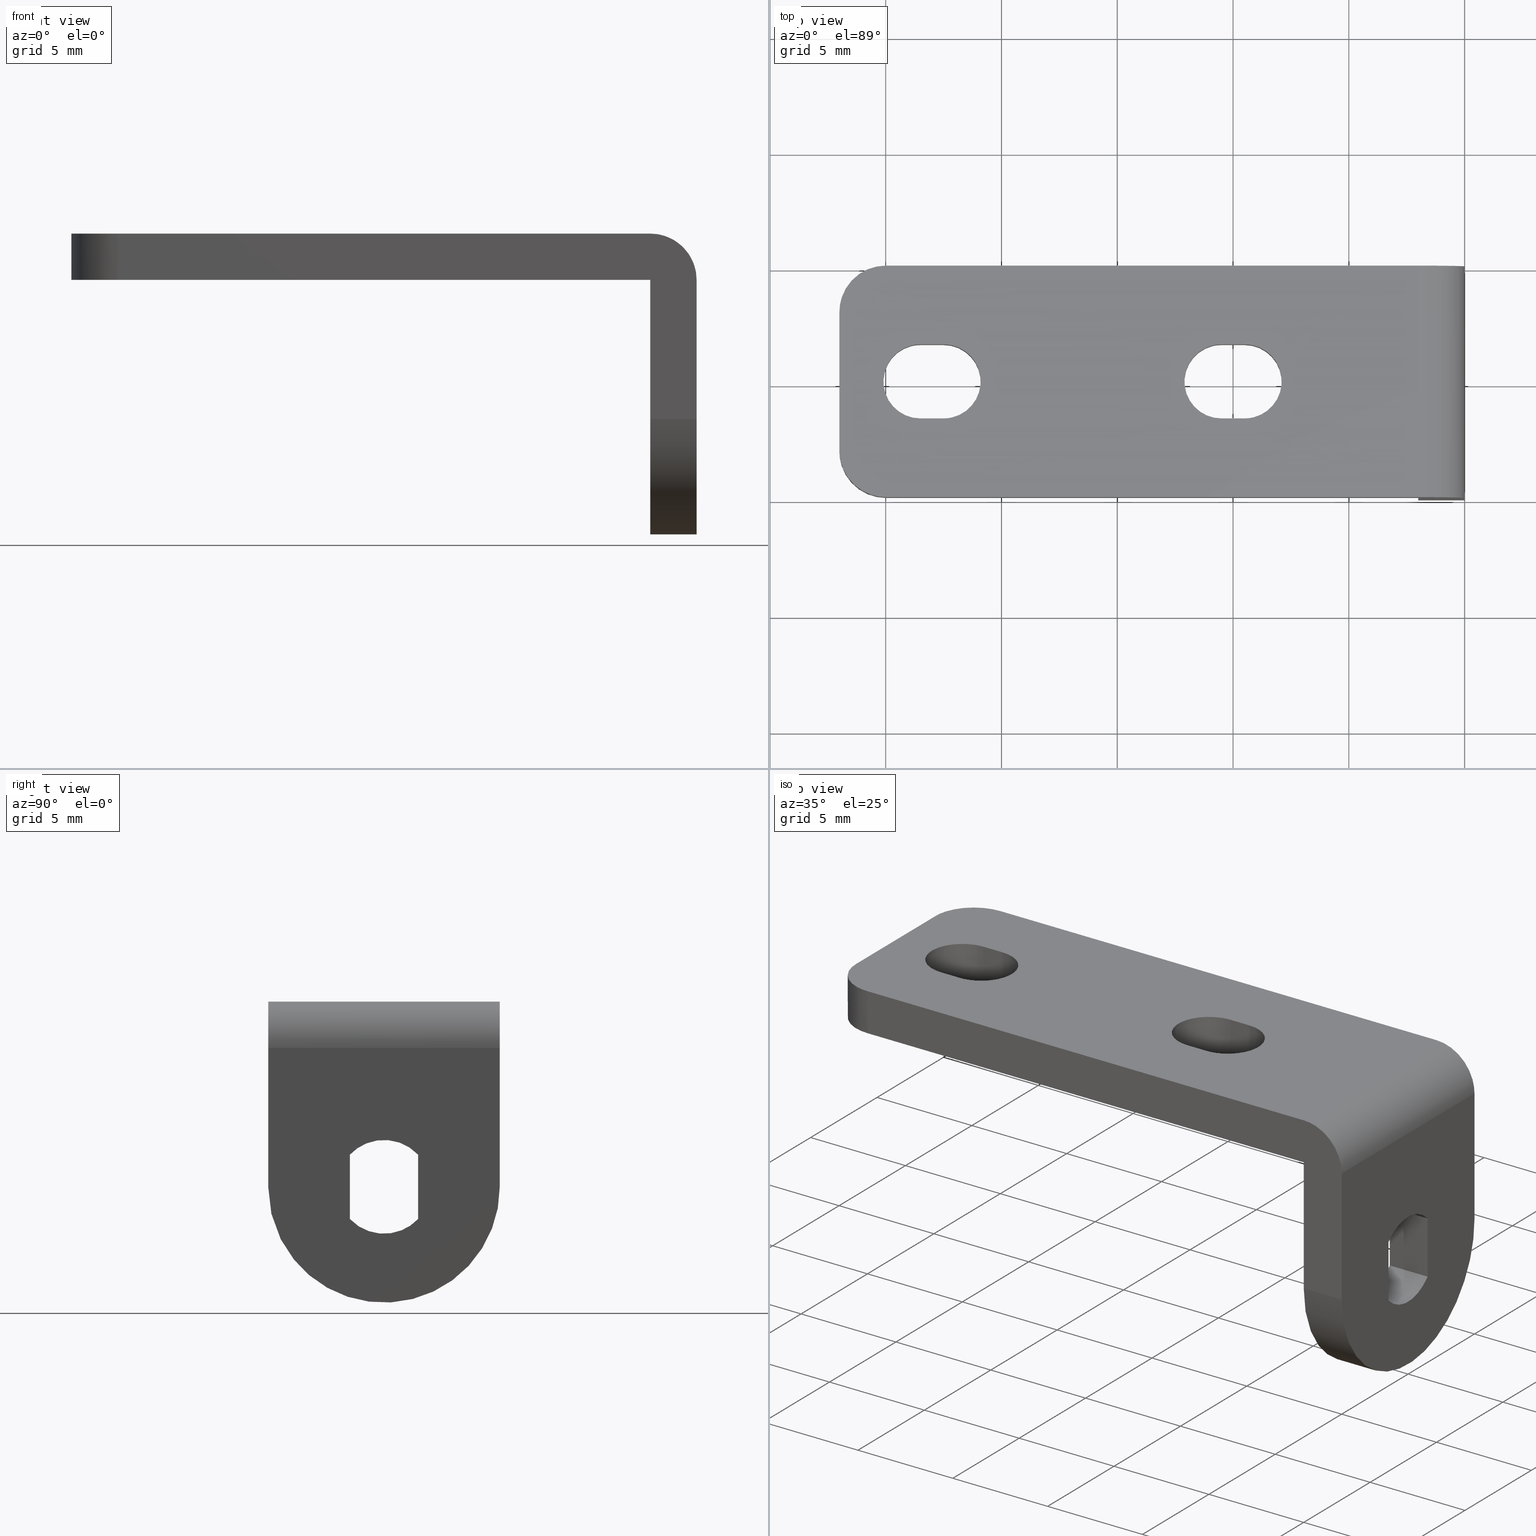
[diagram: canonical four-view strip — front | top / right | iso, engineering-drawing reading convention]
A machine part, canonical four-view strip (front | top / right | iso — engineering-drawing reading convention). The complete STEP part file that produces these views, byte-faithful:
ISO-10303-21;
HEADER;
/****************************************************************
 * Generated by software with PDE/Lib inside                    *
 * PDElib Version v5.1, created Sun 05/01/2005                  *
 * International Technegroup Inc. (www.iti-oh.com)              *
 ****************************************************************/
FILE_DESCRIPTION((''),'2;1');
FILE_NAME('','2009-10-15T11:16:21',(''),(''),'','CADfix','');
FILE_SCHEMA(('AUTOMOTIVE_DESIGN { 1 0 10303 214 1 1 1 1 }'));
ENDSEC;
DATA;
#5=CARTESIAN_POINT('',(-2.0,-5.499499980618361,6.549449978679864));
#6=CARTESIAN_POINT('',(-2.0,5.499500248838891,6.549449978679864));
#7=CARTESIAN_POINT('',(-2.0,-5.499499980618361,-5.549450273722811));
#8=CARTESIAN_POINT('',(-2.0,5.499500248838891,-5.549450273722811));
#9=B_SPLINE_SURFACE_WITH_KNOTS('',1,1,((#5,#7),(#6,#8)),.UNSPECIFIED.,.F.,.F.,.U.,(2,2),(2,2),(0.0,10.999000229457250),(0.0,12.098900252402681),.UNSPECIFIED.);
#10=CARTESIAN_POINT('',(-2.0,4.999999999999920,0.000000872664625));
#11=VERTEX_POINT('',#10);
#12=CARTESIAN_POINT('',(-2.0,4.999999999999890,6.0));
#13=VERTEX_POINT('',#12);
#14=CARTESIAN_POINT('',(-2.0,4.999999999999920,0.000000872664625));
#15=CARTESIAN_POINT('',(-2.0,4.999999999999890,6.0));
#16=QUASI_UNIFORM_CURVE('',1,(#14,#15),.UNSPECIFIED.,.F.,.U.);
#17=EDGE_CURVE('',#11,#13,#16,.T.);
#18=ORIENTED_EDGE('',*,*,#17,.F.);
#19=CARTESIAN_POINT('',(-2.0,-5.000000000000290,-3.061516E-016));
#20=VERTEX_POINT('',#19);
#21=CARTESIAN_POINT('',(-2.0,-5.000000000000290,-3.061516E-016));
#22=CARTESIAN_POINT('',(-2.000000000000002,-5.000001823087632,-0.194302569021518));
#23=CARTESIAN_POINT('',(-2.0,-4.971966203097775,-0.674950922031847));
#24=CARTESIAN_POINT('',(-1.999999999999987,-4.829543010800109,-1.368716820826370));
#25=CARTESIAN_POINT('',(-2.000000000000014,-4.558113977503569,-2.098893736955901));
#26=CARTESIAN_POINT('',(-2.000000000000022,-4.157453913388730,-2.826925252285227));
#27=CARTESIAN_POINT('',(-1.999999999999929,-3.657224117005113,-3.440287437363570));
#28=CARTESIAN_POINT('',(-2.000000000000071,-3.107751506977443,-3.932125056429017));
#29=CARTESIAN_POINT('',(-1.999999999999916,-2.528416142553980,-4.337529861589042));
#30=CARTESIAN_POINT('',(-2.000000000000072,-1.790072712460781,-4.697897794137974));
#31=CARTESIAN_POINT('',(-2.000000000000055,-0.890384551200474,-4.949861066085379));
#32=CARTESIAN_POINT('',(-1.999999999999701,-0.040628223458797,-5.023029462010689));
#33=CARTESIAN_POINT('',(-2.000000000000270,0.735890041569034,-4.960924257503430));
#34=CARTESIAN_POINT('',(-1.999999999999869,1.326737717859232,-4.832044710123201));
#35=CARTESIAN_POINT('',(-2.000000000000053,1.908181298873120,-4.634006377815128));
#36=CARTESIAN_POINT('',(-1.999999999999972,2.500457937382571,-4.351675820177026));
#37=CARTESIAN_POINT('',(-2.000000000000008,3.035633838737545,-3.989297169666432));
#38=CARTESIAN_POINT('',(-1.999999999999999,3.529047734558737,-3.558365417854870));
#39=CARTESIAN_POINT('',(-2.0,3.907797216555929,-3.140481842142561));
#40=CARTESIAN_POINT('',(-2.000000000000001,4.295274678057535,-2.586705450813013));
#41=CARTESIAN_POINT('',(-2.0,4.570858484222017,-2.059506797043746));
#42=CARTESIAN_POINT('',(-2.000000000000001,4.802744028137807,-1.435678978567280));
#43=CARTESIAN_POINT('',(-1.999999999999996,4.959117961407661,-0.777209751544795));
#44=CARTESIAN_POINT('',(-2.000000000000006,5.000016150070903,-0.265888778239335));
#45=CARTESIAN_POINT('',(-2.0,4.999999999999920,0.000000872664625));
#46=B_SPLINE_CURVE_WITH_KNOTS('',3,(#21,#22,#23,#24,#25,#26,#27,#28,#29,#30,#31,#32,#33,#34,#35,#36,#37,#38,#39,#40,#41,#42,#43,#44,#45),.UNSPECIFIED.,.F.,.U.,(4,1,1,1,1,1,1,1,1,1,1,1,1,1,1,1,1,1,1,1,1,1,4),(0.000000041431571,0.582909894722647,1.441937853951801,2.116896966214164,2.914569094510604,3.927005285180279,4.479232491351210,5.123518012526954,6.043892555297452,6.933603155984899,7.915354075980583,8.590310674681671,9.265267720908264,9.725457580433311,10.431092105586661,11.228755472953230,11.658271147560640,12.394584247774549,12.916138187023270,13.683131451389080,14.174007337957260,14.910321362527901,15.707988781856320),.UNSPECIFIED.);
#47=EDGE_CURVE('',#20,#11,#46,.T.);
#48=ORIENTED_EDGE('',*,*,#47,.F.);
#49=CARTESIAN_POINT('',(-2.0,-5.000000000000290,6.0));
#50=VERTEX_POINT('',#49);
#51=CARTESIAN_POINT('',(-2.0,-5.000000000000290,6.0));
#52=CARTESIAN_POINT('',(-2.0,-5.000000000000290,-3.061516E-016));
#53=QUASI_UNIFORM_CURVE('',1,(#51,#52),.UNSPECIFIED.,.F.,.U.);
#54=EDGE_CURVE('',#50,#20,#53,.T.);
#55=ORIENTED_EDGE('',*,*,#54,.F.);
#56=CARTESIAN_POINT('',(-2.0,-5.000000000000290,6.0));
#57=CARTESIAN_POINT('',(-2.0,4.999999999999890,6.0));
#58=QUASI_UNIFORM_CURVE('',1,(#56,#57),.UNSPECIFIED.,.F.,.U.);
#59=EDGE_CURVE('',#50,#13,#58,.T.);
#60=ORIENTED_EDGE('',*,*,#59,.T.);
#61=EDGE_LOOP('',(#18,#48,#55,#60));
#62=FACE_OUTER_BOUND('',#61,.T.);
#63=CARTESIAN_POINT('',(-2.0,-1.475000000000080,-1.387443692551102));
#64=VERTEX_POINT('',#63);
#65=CARTESIAN_POINT('',(-2.0,1.474999999999910,-1.387443692551102));
#66=VERTEX_POINT('',#65);
#67=CARTESIAN_POINT('',(-2.0,-1.475000000000080,-1.387443692551102));
#68=CARTESIAN_POINT('',(-2.000000000000003,-1.404247034006830,-1.462670095867159));
#69=CARTESIAN_POINT('',(-2.000000000000001,-1.244819608994171,-1.608079694576472));
#70=CARTESIAN_POINT('',(-2.000000000000001,-0.999245966677889,-1.769012171023650));
#71=CARTESIAN_POINT('',(-2.0,-0.695060793470837,-1.912182162288267));
#72=CARTESIAN_POINT('',(-1.999999999999995,-0.378392978853842,-2.001227300901713));
#73=CARTESIAN_POINT('',(-2.000000000000013,-0.025916955644532,-2.032748959921168));
#74=CARTESIAN_POINT('',(-1.999999999999992,0.310016830772093,-2.011313706693099));
#75=CARTESIAN_POINT('',(-2.000000000000003,0.621036262229580,-1.936563264948128));
#76=CARTESIAN_POINT('',(-2.000000000000001,0.923470596548432,-1.810384333443018));
#77=CARTESIAN_POINT('',(-2.0,1.204614585589116,-1.641143713344539));
#78=CARTESIAN_POINT('',(-1.999999999999993,1.386565623124737,-1.481482838504677));
#79=CARTESIAN_POINT('',(-2.0,1.474999999999910,-1.387443692551102));
#80=B_SPLINE_CURVE_WITH_KNOTS('',3,(#67,#68,#69,#70,#71,#72,#73,#74,#75,#76,#77,#78,#79),.UNSPECIFIED.,.F.,.U.,(4,1,1,1,1,1,1,1,1,1,4),(0.000000022158772,0.309816259436957,0.645452178341201,0.877818507904691,1.316729026534933,1.626551348102636,1.936357803989555,2.323634236006374,2.581819500113271,2.917461359026573,3.304727559538871),.UNSPECIFIED.);
#81=EDGE_CURVE('',#64,#66,#80,.T.);
#82=ORIENTED_EDGE('',*,*,#81,.T.);
#83=CARTESIAN_POINT('',(-2.0,1.474999999999910,1.387443692550988));
#84=VERTEX_POINT('',#83);
#85=CARTESIAN_POINT('',(-2.0,1.474999999999910,-1.387443692551102));
#86=CARTESIAN_POINT('',(-2.0,1.474999999999910,1.387443692550988));
#87=QUASI_UNIFORM_CURVE('',1,(#85,#86),.UNSPECIFIED.,.F.,.U.);
#88=EDGE_CURVE('',#66,#84,#87,.T.);
#89=ORIENTED_EDGE('',*,*,#88,.T.);
#90=CARTESIAN_POINT('',(-2.0,-1.475000000000000,1.387443692551104));
#91=VERTEX_POINT('',#90);
#92=CARTESIAN_POINT('',(-2.0,1.474999999999910,1.387443692550988));
#93=CARTESIAN_POINT('',(-1.999999999999996,1.357102539872610,1.512851434965368));
#94=CARTESIAN_POINT('',(-2.000000000000004,1.162768326563903,1.672650779027222));
#95=CARTESIAN_POINT('',(-1.999999999999998,0.853207759669690,1.843199744601586));
#96=CARTESIAN_POINT('',(-2.0,0.555439248956538,1.958621154515853));
#97=CARTESIAN_POINT('',(-2.0,0.181743546619741,2.030988730943316));
#98=CARTESIAN_POINT('',(-2.0,-0.207511261108208,2.026010651327402));
#99=CARTESIAN_POINT('',(-1.999999999999995,-0.529274213817618,1.961570195446855));
#100=CARTESIAN_POINT('',(-2.000000000000032,-0.838332617248001,1.853000774453012));
#101=CARTESIAN_POINT('',(-1.999999999999918,-1.157669848905360,1.679689960321592));
#102=CARTESIAN_POINT('',(-2.000000000000061,-1.374775395764616,1.494023867975816));
#103=CARTESIAN_POINT('',(-2.0,-1.475000000000000,1.387443692551104));
#104=B_SPLINE_CURVE_WITH_KNOTS('',3,(#92,#93,#94,#95,#96,#97,#98,#99,#100,#101,#102,#103),.UNSPECIFIED.,.F.,.U.,(4,1,1,1,1,1,1,1,1,4),(0.000000022158622,0.516359102277678,0.748727145943528,1.058547903106527,1.471639036251773,1.884718851656995,2.220360404171133,2.452727092234046,2.865822358041896,3.304727559538841),.UNSPECIFIED.);
#105=EDGE_CURVE('',#84,#91,#104,.T.);
#106=ORIENTED_EDGE('',*,*,#105,.T.);
#107=CARTESIAN_POINT('',(-2.0,-1.475000000000000,1.387443692551104));
#108=CARTESIAN_POINT('',(-2.0,-1.475000000000080,-1.387443692551102));
#109=QUASI_UNIFORM_CURVE('',1,(#107,#108),.UNSPECIFIED.,.F.,.U.);
#110=EDGE_CURVE('',#91,#64,#109,.T.);
#111=ORIENTED_EDGE('',*,*,#110,.T.);
#112=EDGE_LOOP('',(#82,#89,#106,#111));
#113=FACE_BOUND('',#112,.T.);
#114=ADVANCED_FACE('',(#62,#113),#9,.T.);
#115=CARTESIAN_POINT('',(-26.999314649951110,-2.947646103384536,8.050000000000001));
#116=CARTESIAN_POINT('',(-26.999314649951110,-2.947646103384536,5.948749999999999));
#117=CARTESIAN_POINT('',(-27.056448902391988,-5.129515177188516,8.050000000000001));
#118=CARTESIAN_POINT('',(-27.056448902391988,-5.129515177188516,5.948750000000000));
#119=CARTESIAN_POINT('',(-24.877902920930289,-4.996269596844016,8.050000000000001));
#120=CARTESIAN_POINT('',(-24.877902920930289,-4.996269596844016,5.948749999999999));
#128=(BOUNDED_SURFACE()B_SPLINE_SURFACE(1,2,((#115,#117,#119),(#116,#118,#120)),.UNSPECIFIED.,.F.,.F.,.U.)B_SPLINE_SURFACE_WITH_KNOTS((2,2),(3,3),(0.0,2.101250000000003),(0.0,3.520084247134661),.UNSPECIFIED.)GEOMETRIC_REPRESENTATION_ITEM()RATIONAL_B_SPLINE_SURFACE(((1.0,0.675590207615660,1.0),(1.0,0.675590207615660,1.0)))REPRESENTATION_ITEM('')SURFACE());
#129=CARTESIAN_POINT('',(-27.0,-3.000000000000285,8.0));
#130=VERTEX_POINT('',#129);
#131=CARTESIAN_POINT('',(-25.0,-5.000000000000290,8.0));
#132=VERTEX_POINT('',#131);
#133=CARTESIAN_POINT('',(-27.0,-3.000000000000285,8.0));
#134=CARTESIAN_POINT('',(-27.000000000000011,-5.000000000000284,8.0));
#135=CARTESIAN_POINT('',(-25.0,-5.000000000000285,8.0));
#143=(BOUNDED_CURVE()B_SPLINE_CURVE(2,(#133,#134,#135),.UNSPECIFIED.,.F.,.U.)CURVE()GEOMETRIC_REPRESENTATION_ITEM()QUASI_UNIFORM_CURVE()RATIONAL_B_SPLINE_CURVE((1.0,0.707106781186548,1.0))REPRESENTATION_ITEM(''));
#144=EDGE_CURVE('',#130,#132,#143,.T.);
#145=ORIENTED_EDGE('',*,*,#144,.F.);
#146=CARTESIAN_POINT('',(-27.0,-3.000000000000285,6.0));
#147=VERTEX_POINT('',#146);
#148=CARTESIAN_POINT('',(-27.0,-3.000000000000285,6.0));
#149=CARTESIAN_POINT('',(-27.0,-3.000000000000285,8.0));
#150=QUASI_UNIFORM_CURVE('',1,(#148,#149),.UNSPECIFIED.,.F.,.U.);
#151=EDGE_CURVE('',#147,#130,#150,.T.);
#152=ORIENTED_EDGE('',*,*,#151,.F.);
#153=CARTESIAN_POINT('',(-25.0,-5.000000000000290,6.0));
#154=VERTEX_POINT('',#153);
#155=CARTESIAN_POINT('',(-25.0,-5.000000000000285,6.0));
#156=CARTESIAN_POINT('',(-27.000000000000011,-5.000000000000284,6.0));
#157=CARTESIAN_POINT('',(-27.0,-3.000000000000285,6.0));
#165=(BOUNDED_CURVE()B_SPLINE_CURVE(2,(#155,#156,#157),.UNSPECIFIED.,.F.,.U.)CURVE()GEOMETRIC_REPRESENTATION_ITEM()QUASI_UNIFORM_CURVE()RATIONAL_B_SPLINE_CURVE((1.0,0.707106781186548,1.0))REPRESENTATION_ITEM(''));
#166=EDGE_CURVE('',#154,#147,#165,.T.);
#167=ORIENTED_EDGE('',*,*,#166,.F.);
#168=CARTESIAN_POINT('',(-25.0,-5.000000000000290,8.0));
#169=CARTESIAN_POINT('',(-25.0,-5.000000000000290,6.0));
#170=QUASI_UNIFORM_CURVE('',1,(#168,#169),.UNSPECIFIED.,.F.,.U.);
#171=EDGE_CURVE('',#132,#154,#170,.T.);
#172=ORIENTED_EDGE('',*,*,#171,.F.);
#173=EDGE_LOOP('',(#145,#152,#167,#172));
#174=FACE_OUTER_BOUND('',#173,.T.);
#175=ADVANCED_FACE('',(#174),#128,.T.);
#176=CARTESIAN_POINT('',(-26.999314649951110,2.947646103384138,5.949999999999999));
#177=CARTESIAN_POINT('',(-26.999314649951110,2.947646103384138,8.051250000000000));
#178=CARTESIAN_POINT('',(-27.056984520332527,5.149969601109330,5.949999999999999));
#179=CARTESIAN_POINT('',(-27.056984520332527,5.149969601109330,8.051250000000000));
#180=CARTESIAN_POINT('',(-24.859359848748039,4.995048958761507,5.949999999999999));
#181=CARTESIAN_POINT('',(-24.859359848748039,4.995048958761507,8.051250000000001));
#189=(BOUNDED_SURFACE()B_SPLINE_SURFACE(1,2,((#176,#178,#180),(#177,#179,#181)),.UNSPECIFIED.,.F.,.F.,.U.)B_SPLINE_SURFACE_WITH_KNOTS((2,2),(3,3),(0.0,2.101250000000002),(0.0,3.542284688176721),.UNSPECIFIED.)GEOMETRIC_REPRESENTATION_ITEM()RATIONAL_B_SPLINE_SURFACE(((1.0,0.670944223154768,0.996392648609106),(1.0,0.670944223154768,0.996392648609106)))REPRESENTATION_ITEM('')SURFACE());
#190=CARTESIAN_POINT('',(-27.0,2.999999999999885,6.0));
#191=VERTEX_POINT('',#190);
#192=CARTESIAN_POINT('',(-25.0,4.999999999999890,6.0));
#193=VERTEX_POINT('',#192);
#194=CARTESIAN_POINT('',(-27.0,2.999999999999885,6.0));
#195=CARTESIAN_POINT('',(-27.000000000000011,4.999999999999885,6.0));
#196=CARTESIAN_POINT('',(-25.0,4.999999999999885,6.0));
#204=(BOUNDED_CURVE()B_SPLINE_CURVE(2,(#194,#195,#196),.UNSPECIFIED.,.F.,.U.)CURVE()GEOMETRIC_REPRESENTATION_ITEM()QUASI_UNIFORM_CURVE()RATIONAL_B_SPLINE_CURVE((1.0,0.707106781186548,1.0))REPRESENTATION_ITEM(''));
#205=EDGE_CURVE('',#191,#193,#204,.T.);
#206=ORIENTED_EDGE('',*,*,#205,.F.);
#207=CARTESIAN_POINT('',(-27.0,2.999999999999885,8.0));
#208=VERTEX_POINT('',#207);
#209=CARTESIAN_POINT('',(-27.0,2.999999999999885,8.0));
#210=CARTESIAN_POINT('',(-27.0,2.999999999999885,6.0));
#211=QUASI_UNIFORM_CURVE('',1,(#209,#210),.UNSPECIFIED.,.F.,.U.);
#212=EDGE_CURVE('',#208,#191,#211,.T.);
#213=ORIENTED_EDGE('',*,*,#212,.F.);
#214=CARTESIAN_POINT('',(-25.0,4.999999999999890,8.0));
#215=VERTEX_POINT('',#214);
#216=CARTESIAN_POINT('',(-25.0,4.999999999999885,8.0));
#217=CARTESIAN_POINT('',(-27.000000000000011,4.999999999999885,8.0));
#218=CARTESIAN_POINT('',(-27.0,2.999999999999885,8.0));
#226=(BOUNDED_CURVE()B_SPLINE_CURVE(2,(#216,#217,#218),.UNSPECIFIED.,.F.,.U.)CURVE()GEOMETRIC_REPRESENTATION_ITEM()QUASI_UNIFORM_CURVE()RATIONAL_B_SPLINE_CURVE((1.0,0.707106781186548,1.0))REPRESENTATION_ITEM(''));
#227=EDGE_CURVE('',#215,#208,#226,.T.);
#228=ORIENTED_EDGE('',*,*,#227,.F.);
#229=CARTESIAN_POINT('',(-25.0,4.999999999999890,6.0));
#230=CARTESIAN_POINT('',(-25.0,4.999999999999890,8.0));
#231=QUASI_UNIFORM_CURVE('',1,(#229,#230),.UNSPECIFIED.,.F.,.U.);
#232=EDGE_CURVE('',#193,#215,#231,.T.);
#233=ORIENTED_EDGE('',*,*,#232,.F.);
#234=EDGE_LOOP('',(#206,#213,#228,#233));
#235=FACE_OUTER_BOUND('',#234,.T.);
#236=ADVANCED_FACE('',(#235),#189,.T.);
#237=CARTESIAN_POINT('',(-22.541883117292301,1.599451719960891,5.949999999999999));
#238=CARTESIAN_POINT('',(-22.541883117292301,1.599451719960891,8.051250000000000));
#239=CARTESIAN_POINT('',(-20.871074053178226,1.643203395070873,5.950000000000001));
#240=CARTESIAN_POINT('',(-20.871074053178226,1.643203395070873,8.051250000000000));
#241=CARTESIAN_POINT('',(-20.900243687749470,-0.027923850299651,5.949999999999999));
#242=CARTESIAN_POINT('',(-20.900243687749470,-0.027923850299651,8.051250000000000));
#243=CARTESIAN_POINT('',(-20.929413322320734,-1.699051095670177,5.950000000000001));
#244=CARTESIAN_POINT('',(-20.929413322320734,-1.699051095670177,8.051250000000000));
#245=CARTESIAN_POINT('',(-22.597677663255471,-1.597015677474989,5.949999999999999));
#246=CARTESIAN_POINT('',(-22.597677663255471,-1.597015677474989,8.051250000000000));
#254=(BOUNDED_SURFACE()B_SPLINE_SURFACE(1,2,((#237,#239,#241,#243,#245),(#238,#240,#242,#244,#246)),.UNSPECIFIED.,.F.,.F.,.U.)B_SPLINE_SURFACE_WITH_KNOTS((2,2),(3,2,3),(0.0,2.101250000000000),(0.0,2.733132529706897,5.466265059413795),.UNSPECIFIED.)GEOMETRIC_REPRESENTATION_ITEM()RATIONAL_B_SPLINE_SURFACE(((1.0,0.691513055782269,1.0,0.691513055782269,1.0),(1.0,0.691513055782269,1.0,0.691513055782269,1.0)))REPRESENTATION_ITEM('')SURFACE());
#255=CARTESIAN_POINT('',(-22.499999999999702,1.600000000000000,8.0));
#256=VERTEX_POINT('',#255);
#257=CARTESIAN_POINT('',(-22.499999999999702,-1.600000000000000,8.0));
#258=VERTEX_POINT('',#257);
#259=CARTESIAN_POINT('',(-22.499999999999702,1.600000000000000,8.0));
#260=CARTESIAN_POINT('',(-22.414921520282011,1.600002823840611,8.000000000000012));
#261=CARTESIAN_POINT('',(-22.218573801473578,1.584316291391507,7.999999999999982));
#262=CARTESIAN_POINT('',(-21.932693562613728,1.507091757298809,8.000000000000034));
#263=CARTESIAN_POINT('',(-21.650014745607429,1.366972258424257,7.999999999999932));
#264=CARTESIAN_POINT('',(-21.419721359114622,1.191748154016894,8.000000000000053));
#265=CARTESIAN_POINT('',(-21.237721898400380,0.993390356568301,7.999999999999925));
#266=CARTESIAN_POINT('',(-21.091876210818320,0.775121547057345,8.000000000000174));
#267=CARTESIAN_POINT('',(-20.986562243590761,0.541419262911922,7.999999999999870));
#268=CARTESIAN_POINT('',(-20.911285706260511,0.255852440164700,7.999999999999856));
#269=CARTESIAN_POINT('',(-20.890454186327538,-0.026524210497543,8.000000000000338));
#270=CARTESIAN_POINT('',(-20.924072861595299,-0.313459092254806,7.999999999999701));
#271=CARTESIAN_POINT('',(-21.004601499687151,-0.597744340014160,8.000000000000144));
#272=CARTESIAN_POINT('',(-21.142543734006619,-0.867660046047751,8.000000000000075));
#273=CARTESIAN_POINT('',(-21.323178322477808,-1.093314462553221,7.999999999999856));
#274=CARTESIAN_POINT('',(-21.526180014407920,-1.279599519792800,8.000000000000018));
#275=CARTESIAN_POINT('',(-21.786456106268830,-1.446687968449453,8.000000000000043));
#276=CARTESIAN_POINT('',(-22.126946551985849,-1.570866733295116,7.999999999999908));
#277=CARTESIAN_POINT('',(-22.375644873445559,-1.600024209087216,8.000000000000057));
#278=CARTESIAN_POINT('',(-22.499999999999702,-1.600000000000000,8.0));
#279=B_SPLINE_CURVE_WITH_KNOTS('',3,(#259,#260,#261,#262,#263,#264,#265,#266,#267,#268,#269,#270,#271,#272,#273,#274,#275,#276,#277,#278),.UNSPECIFIED.,.F.,.U.,(4,1,1,1,1,1,1,1,1,1,1,1,1,1,1,1,1,4),(0.000000073234362,0.255238167650174,0.589040055430597,0.883575817891654,1.197739429177118,1.453000331354550,1.688620100621115,1.983144199295933,2.218768079645707,2.572177351895642,2.827435063367205,3.082706282911354,3.455767736773763,3.730664371972358,3.946651496552952,4.280450646930206,4.653517583913629,5.026579785226438),.UNSPECIFIED.);
#280=EDGE_CURVE('',#256,#258,#279,.T.);
#281=ORIENTED_EDGE('',*,*,#280,.F.);
#282=CARTESIAN_POINT('',(-22.499999999999702,1.600000000000000,6.0));
#283=VERTEX_POINT('',#282);
#284=CARTESIAN_POINT('',(-22.499999999999702,1.600000000000000,6.0));
#285=CARTESIAN_POINT('',(-22.499999999999702,1.600000000000000,8.0));
#286=QUASI_UNIFORM_CURVE('',1,(#284,#285),.UNSPECIFIED.,.F.,.U.);
#287=EDGE_CURVE('',#283,#256,#286,.T.);
#288=ORIENTED_EDGE('',*,*,#287,.F.);
#289=CARTESIAN_POINT('',(-22.499999999999702,-1.600000000000000,6.0));
#290=VERTEX_POINT('',#289);
#291=CARTESIAN_POINT('',(-22.499999999999702,1.600000000000000,6.0));
#292=CARTESIAN_POINT('',(-22.395285338430899,1.600011022726591,5.999999999999994));
#293=CARTESIAN_POINT('',(-22.198945002663301,1.580657009069082,6.000000000000002));
#294=CARTESIAN_POINT('',(-21.952885483493329,1.509301030128196,6.000000000000004));
#295=CARTESIAN_POINT('',(-21.725782753081170,1.406964124209399,5.999999999999981));
#296=CARTESIAN_POINT('',(-21.521120049655000,1.275598802146119,6.000000000000009));
#297=CARTESIAN_POINT('',(-21.308251203106281,1.080277021886264,5.999999999999961));
#298=CARTESIAN_POINT('',(-21.121075374068990,0.834289368160123,6.000000000000073));
#299=CARTESIAN_POINT('',(-20.991575405782420,0.560460788222691,6.000000000000017));
#300=CARTESIAN_POINT('',(-20.911283812261100,0.255852858804677,5.999999999999848));
#301=CARTESIAN_POINT('',(-20.890455821300229,-0.026524740550257,6.000000000000261));
#302=CARTESIAN_POINT('',(-20.924072631539119,-0.313459018202967,5.999999999999778));
#303=CARTESIAN_POINT('',(-21.004601543129191,-0.597744353711932,6.000000000000104));
#304=CARTESIAN_POINT('',(-21.142543720902349,-0.867660041944905,6.000000000000057));
#305=CARTESIAN_POINT('',(-21.323178324666120,-1.093314463238364,5.999999999999891));
#306=CARTESIAN_POINT('',(-21.526180014407920,-1.279599519792799,6.000000000000017));
#307=CARTESIAN_POINT('',(-21.786456106268830,-1.446687968449453,6.000000000000028));
#308=CARTESIAN_POINT('',(-22.126946551985860,-1.570866733295116,5.999999999999933));
#309=CARTESIAN_POINT('',(-22.375644873445559,-1.600024209087217,6.000000000000052));
#310=CARTESIAN_POINT('',(-22.499999999999702,-1.600000000000000,6.0));
#311=B_SPLINE_CURVE_WITH_KNOTS('',3,(#291,#292,#293,#294,#295,#296,#297,#298,#299,#300,#301,#302,#303,#304,#305,#306,#307,#308,#309,#310),.UNSPECIFIED.,.F.,.U.,(4,1,1,1,1,1,1,1,1,1,1,1,1,1,1,1,1,4),(0.000000073234362,0.314143649145325,0.589040055430597,0.765765101667706,1.060291138588674,1.315552045284585,1.629714145460727,1.983144199295933,2.218768079645707,2.572177351895642,2.827435063367205,3.082706282911354,3.455767736773763,3.730664371972358,3.946651496552952,4.280450646930206,4.653517583913629,5.026579785226438),.UNSPECIFIED.);
#312=EDGE_CURVE('',#283,#290,#311,.T.);
#313=ORIENTED_EDGE('',*,*,#312,.T.);
#314=CARTESIAN_POINT('',(-22.499999999999702,-1.600000000000000,6.0));
#315=CARTESIAN_POINT('',(-22.499999999999702,-1.600000000000000,8.0));
#316=QUASI_UNIFORM_CURVE('',1,(#314,#315),.UNSPECIFIED.,.F.,.U.);
#317=EDGE_CURVE('',#290,#258,#316,.T.);
#318=ORIENTED_EDGE('',*,*,#317,.T.);
#319=EDGE_LOOP('',(#281,#288,#313,#318));
#320=FACE_OUTER_BOUND('',#319,.T.);
#321=ADVANCED_FACE('',(#320),#254,.F.);
#322=CARTESIAN_POINT('',(-23.549949998061511,-1.600000000000000,8.099899996123611));
#323=CARTESIAN_POINT('',(-23.549949998061511,-1.600000000000000,5.900099950232207));
#324=CARTESIAN_POINT('',(-22.450049975115800,-1.600000000000000,8.099899996123611));
#325=CARTESIAN_POINT('',(-22.450049975115800,-1.600000000000000,5.900099950232207));
#326=B_SPLINE_SURFACE_WITH_KNOTS('',1,1,((#322,#324),(#323,#325)),.UNSPECIFIED.,.F.,.F.,.U.,(2,2),(2,2),(0.0,2.199800045891404),(0.041708334948495,0.958291687403247),.UNSPECIFIED.);
#327=CARTESIAN_POINT('',(-23.499999999999702,-1.600000000000000,8.0));
#328=VERTEX_POINT('',#327);
#329=CARTESIAN_POINT('',(-23.499999999999702,-1.600000000000000,8.0));
#330=CARTESIAN_POINT('',(-22.499999999999702,-1.600000000000000,8.0));
#331=QUASI_UNIFORM_CURVE('',1,(#329,#330),.UNSPECIFIED.,.F.,.U.);
#332=EDGE_CURVE('',#328,#258,#331,.T.);
#333=ORIENTED_EDGE('',*,*,#332,.T.);
#334=ORIENTED_EDGE('',*,*,#317,.F.);
#335=CARTESIAN_POINT('',(-23.499999999999702,-1.600000000000000,6.0));
#336=VERTEX_POINT('',#335);
#337=CARTESIAN_POINT('',(-23.499999999999702,-1.600000000000000,6.0));
#338=CARTESIAN_POINT('',(-22.499999999999702,-1.600000000000000,6.0));
#339=QUASI_UNIFORM_CURVE('',1,(#337,#338),.UNSPECIFIED.,.F.,.U.);
#340=EDGE_CURVE('',#336,#290,#339,.T.);
#341=ORIENTED_EDGE('',*,*,#340,.F.);
#342=CARTESIAN_POINT('',(-23.499999999999702,-1.600000000000000,6.0));
#343=CARTESIAN_POINT('',(-23.499999999999702,-1.600000000000000,8.0));
#344=QUASI_UNIFORM_CURVE('',1,(#342,#343),.UNSPECIFIED.,.F.,.U.);
#345=EDGE_CURVE('',#336,#328,#344,.T.);
#346=ORIENTED_EDGE('',*,*,#345,.T.);
#347=EDGE_LOOP('',(#333,#334,#341,#346));
#348=FACE_OUTER_BOUND('',#347,.T.);
#349=ADVANCED_FACE('',(#348),#326,.F.);
#350=CARTESIAN_POINT('',(-23.458116882707099,-1.599451719960891,5.949999999999999));
#351=CARTESIAN_POINT('',(-23.458116882707099,-1.599451719960891,8.051250000000000));
#352=CARTESIAN_POINT('',(-25.128925946821180,-1.643203395070867,5.950000000000001));
#353=CARTESIAN_POINT('',(-25.128925946821180,-1.643203395070867,8.051250000000000));
#354=CARTESIAN_POINT('',(-25.099756312249919,0.027923850299654,5.949999999999999));
#355=CARTESIAN_POINT('',(-25.099756312249919,0.027923850299654,8.051250000000000));
#356=CARTESIAN_POINT('',(-25.070586677678666,1.699051095670177,5.950000000000001));
#357=CARTESIAN_POINT('',(-25.070586677678666,1.699051095670177,8.051250000000000));
#358=CARTESIAN_POINT('',(-23.402322336743929,1.597015677474989,5.949999999999999));
#359=CARTESIAN_POINT('',(-23.402322336743929,1.597015677474989,8.051250000000000));
#367=(BOUNDED_SURFACE()B_SPLINE_SURFACE(1,2,((#350,#352,#354,#356,#358),(#351,#353,#355,#357,#359)),.UNSPECIFIED.,.F.,.F.,.U.)B_SPLINE_SURFACE_WITH_KNOTS((2,2),(3,2,3),(0.0,2.101250000000000),(0.0,2.733132529706900,5.466265059413799),.UNSPECIFIED.)GEOMETRIC_REPRESENTATION_ITEM()RATIONAL_B_SPLINE_SURFACE(((1.0,0.691513055782269,1.0,0.691513055782269,1.0),(1.0,0.691513055782269,1.0,0.691513055782269,1.0)))REPRESENTATION_ITEM('')SURFACE());
#368=CARTESIAN_POINT('',(-23.499999999999702,1.600000000000000,8.0));
#369=VERTEX_POINT('',#368);
#370=CARTESIAN_POINT('',(-23.499999999999702,-1.600000000000000,8.0));
#371=CARTESIAN_POINT('',(-23.650536609042089,-1.600058125941515,8.000000000000009));
#372=CARTESIAN_POINT('',(-23.925393409599700,-1.560918242834114,8.0));
#373=CARTESIAN_POINT('',(-24.259369579068849,-1.420159760153032,8.000000000000009));
#374=CARTESIAN_POINT('',(-24.531219222112810,-1.236093446146688,7.999999999999988));
#375=CARTESIAN_POINT('',(-24.773362276860851,-0.993976392029333,7.999999999999979));
#376=CARTESIAN_POINT('',(-24.951603308848000,-0.700719427638507,8.000000000000107));
#377=CARTESIAN_POINT('',(-25.045032041829320,-0.434284096114847,7.999999999999823));
#378=CARTESIAN_POINT('',(-25.103084129943699,-0.151766258201647,8.000000000000158));
#379=CARTESIAN_POINT('',(-25.106800359341339,0.152013448049120,8.000000000000084));
#380=CARTESIAN_POINT('',(-25.035326399031870,0.479519868747272,7.999999999999847));
#381=CARTESIAN_POINT('',(-24.939797476203982,0.710143924414512,8.000000000000226));
#382=CARTESIAN_POINT('',(-24.816383599665990,0.918931901187343,8.000000000000004));
#383=CARTESIAN_POINT('',(-24.635798314374110,1.144631117969317,7.999999999999696));
#384=CARTESIAN_POINT('',(-24.399960759602109,1.335775588050442,8.000000000000163));
#385=CARTESIAN_POINT('',(-24.150351527860021,1.467179653499806,7.999999999999959));
#386=CARTESIAN_POINT('',(-23.873033915525081,1.568350140355894,7.999999999999991));
#387=CARTESIAN_POINT('',(-23.650542320082661,1.600065896854819,8.000000000000034));
#388=CARTESIAN_POINT('',(-23.499999999999702,1.600000000000000,8.0));
#389=B_SPLINE_CURVE_WITH_KNOTS('',3,(#370,#371,#372,#373,#374,#375,#376,#377,#378,#379,#380,#381,#382,#383,#384,#385,#386,#387,#388),.UNSPECIFIED.,.F.,.U.,(4,1,1,1,1,1,1,1,1,1,1,1,1,1,1,1,4),(0.000000073209660,0.451592048350679,0.824673027605678,1.079928103117081,1.433363276245115,1.845703604588665,2.100968558862838,2.277685286731255,2.709633226973643,3.004161235016429,3.279053292246787,3.455767736769724,3.730664371969866,4.143004323677306,4.358988920834674,4.574976799289524,5.026579785226443),.UNSPECIFIED.);
#390=EDGE_CURVE('',#328,#369,#389,.T.);
#391=ORIENTED_EDGE('',*,*,#390,.F.);
#392=ORIENTED_EDGE('',*,*,#345,.F.);
#393=CARTESIAN_POINT('',(-23.499999999999702,1.600000000000000,6.0));
#394=VERTEX_POINT('',#393);
#395=CARTESIAN_POINT('',(-23.499999999999702,-1.600000000000000,6.0));
#396=CARTESIAN_POINT('',(-23.650536608957090,-1.600058125936623,6.000000000000006));
#397=CARTESIAN_POINT('',(-23.925393410050130,-1.560918242859926,6.000000000000001));
#398=CARTESIAN_POINT('',(-24.259369577836381,-1.420159760081650,6.000000000000004));
#399=CARTESIAN_POINT('',(-24.531219224219029,-1.236093446264144,5.999999999999991));
#400=CARTESIAN_POINT('',(-24.773362286005931,-0.993976392628637,6.000000000000014));
#401=CARTESIAN_POINT('',(-24.951603276084079,-0.700719425494019,5.999999999999973));
#402=CARTESIAN_POINT('',(-25.045032050669821,-0.434284093007883,6.000000000000056));
#403=CARTESIAN_POINT('',(-25.103084262060829,-0.151766241801303,6.000000000000022));
#404=CARTESIAN_POINT('',(-25.106800177795900,0.152013458777933,6.000000000000040));
#405=CARTESIAN_POINT('',(-25.035326411794451,0.479519864994117,5.999999999999874));
#406=CARTESIAN_POINT('',(-24.939797497838111,0.710143924233325,6.000000000000182));
#407=CARTESIAN_POINT('',(-24.816383599625500,0.918931901371225,6.000000000000005));
#408=CARTESIAN_POINT('',(-24.635798314395931,1.144631117866118,5.999999999999773));
#409=CARTESIAN_POINT('',(-24.399960759594109,1.335775588088515,6.000000000000118));
#410=CARTESIAN_POINT('',(-24.150351527861449,1.467179653493001,5.999999999999973));
#411=CARTESIAN_POINT('',(-23.873033915525092,1.568350140355907,5.999999999999991));
#412=CARTESIAN_POINT('',(-23.650542320082650,1.600065896854812,6.000000000000023));
#413=CARTESIAN_POINT('',(-23.499999999999702,1.600000000000000,6.0));
#414=B_SPLINE_CURVE_WITH_KNOTS('',3,(#395,#396,#397,#398,#399,#400,#401,#402,#403,#404,#405,#406,#407,#408,#409,#410,#411,#412,#413),.UNSPECIFIED.,.F.,.U.,(4,1,1,1,1,1,1,1,1,1,1,1,1,1,1,1,4),(0.000000073209660,0.451592048350679,0.824673027605678,1.079928103117081,1.433363276245115,1.845703604588665,2.100968558862838,2.277685286731255,2.709633226973643,3.004161235016429,3.279053292246787,3.455767736769724,3.730664371969866,4.143004323677306,4.358988920834674,4.574976799289524,5.026579785226443),.UNSPECIFIED.);
#415=EDGE_CURVE('',#336,#394,#414,.T.);
#416=ORIENTED_EDGE('',*,*,#415,.T.);
#417=CARTESIAN_POINT('',(-23.499999999999702,1.600000000000000,6.0));
#418=CARTESIAN_POINT('',(-23.499999999999702,1.600000000000000,8.0));
#419=QUASI_UNIFORM_CURVE('',1,(#417,#418),.UNSPECIFIED.,.F.,.U.);
#420=EDGE_CURVE('',#394,#369,#419,.T.);
#421=ORIENTED_EDGE('',*,*,#420,.T.);
#422=EDGE_LOOP('',(#391,#392,#416,#421));
#423=FACE_OUTER_BOUND('',#422,.T.);
#424=ADVANCED_FACE('',(#423),#367,.F.);
#425=CARTESIAN_POINT('',(-23.549949998061511,1.600000000000000,5.900100003876386));
#426=CARTESIAN_POINT('',(-23.549949998061511,1.600000000000000,8.099900049767792));
#427=CARTESIAN_POINT('',(-22.450049975115800,1.600000000000000,5.900100003876386));
#428=CARTESIAN_POINT('',(-22.450049975115800,1.600000000000000,8.099900049767792));
#429=B_SPLINE_SURFACE_WITH_KNOTS('',1,1,((#425,#427),(#426,#428)),.UNSPECIFIED.,.F.,.F.,.U.,(2,2),(2,2),(0.0,2.199800045891405),(0.041708334948495,0.958291687403247),.UNSPECIFIED.);
#430=CARTESIAN_POINT('',(-22.499999999999702,1.600000000000000,8.0));
#431=CARTESIAN_POINT('',(-23.499999999999702,1.600000000000000,8.0));
#432=QUASI_UNIFORM_CURVE('',1,(#430,#431),.UNSPECIFIED.,.F.,.U.);
#433=EDGE_CURVE('',#256,#369,#432,.T.);
#434=ORIENTED_EDGE('',*,*,#433,.T.);
#435=ORIENTED_EDGE('',*,*,#420,.F.);
#436=CARTESIAN_POINT('',(-22.499999999999702,1.600000000000000,6.0));
#437=CARTESIAN_POINT('',(-23.499999999999702,1.600000000000000,6.0));
#438=QUASI_UNIFORM_CURVE('',1,(#436,#437),.UNSPECIFIED.,.F.,.U.);
#439=EDGE_CURVE('',#283,#394,#438,.T.);
#440=ORIENTED_EDGE('',*,*,#439,.F.);
#441=ORIENTED_EDGE('',*,*,#287,.T.);
#442=EDGE_LOOP('',(#434,#435,#440,#441));
#443=FACE_OUTER_BOUND('',#442,.T.);
#444=ADVANCED_FACE('',(#443),#429,.F.);
#445=CARTESIAN_POINT('',(-9.513962456797287,1.599939076902674,5.949999999999999));
#446=CARTESIAN_POINT('',(-9.513962456797287,1.599939076902674,8.051250000000000));
#447=CARTESIAN_POINT('',(-7.857177042446469,1.614397624171370,5.949999999999999));
#448=CARTESIAN_POINT('',(-7.857177042446469,1.614397624171370,8.051250000000000));
#449=CARTESIAN_POINT('',(-7.900548280038999,-0.041883117292597,5.949999999999999));
#450=CARTESIAN_POINT('',(-7.900548280038999,-0.041883117292597,8.051250000000000));
#451=CARTESIAN_POINT('',(-7.943919517631531,-1.698163858756564,5.949999999999999));
#452=CARTESIAN_POINT('',(-7.943919517631531,-1.698163858756564,8.051250000000000));
#453=CARTESIAN_POINT('',(-9.597677663255663,-1.597015677474986,5.949999999999999));
#454=CARTESIAN_POINT('',(-9.597677663255663,-1.597015677474986,8.051250000000000));
#462=(BOUNDED_SURFACE()B_SPLINE_SURFACE(1,2,((#445,#447,#449,#451,#453),(#446,#448,#450,#452,#454)),.UNSPECIFIED.,.F.,.F.,.U.)B_SPLINE_SURFACE_WITH_KNOTS((2,2),(3,2,3),(0.0,2.101250000000000),(0.0,2.716638823741472,5.433277647482944),.UNSPECIFIED.)GEOMETRIC_REPRESENTATION_ITEM()RATIONAL_B_SPLINE_SURFACE(((1.0,0.694658370458997,1.0,0.694658370458997,1.0),(1.0,0.694658370458997,1.0,0.694658370458997,1.0)))REPRESENTATION_ITEM('')SURFACE());
#463=CARTESIAN_POINT('',(-9.499999999999890,1.600000000000000,8.0));
#464=VERTEX_POINT('',#463);
#465=CARTESIAN_POINT('',(-9.499999999999890,-1.600000000000000,8.0));
#466=VERTEX_POINT('',#465);
#467=CARTESIAN_POINT('',(-9.499999999999890,1.600000000000000,8.0));
#468=CARTESIAN_POINT('',(-9.362553139464531,1.600040555348078,8.000000000000004));
#469=CARTESIAN_POINT('',(-9.107323745933371,1.566900606042539,8.000000000000002));
#470=CARTESIAN_POINT('',(-8.757120010175092,1.431830066229358,8.000000000000002));
#471=CARTESIAN_POINT('',(-8.472408887362889,1.241582360639320,8.000000000000005));
#472=CARTESIAN_POINT('',(-8.256547535726693,1.020338946922571,7.999999999999994));
#473=CARTESIAN_POINT('',(-8.109305570241512,0.802859260574757,8.000000000000018));
#474=CARTESIAN_POINT('',(-8.001348239892726,0.578169849843138,7.999999999999962));
#475=CARTESIAN_POINT('',(-7.911674489653333,0.282720032215987,7.999999999999990));
#476=CARTESIAN_POINT('',(-7.885930706051161,-0.066374532112250,8.000000000000114));
#477=CARTESIAN_POINT('',(-7.948893299075079,-0.442828144835101,7.999999999999905));
#478=CARTESIAN_POINT('',(-8.068140183310350,-0.735784556106195,7.999999999999971));
#479=CARTESIAN_POINT('',(-8.232783958311748,-0.988829578226007,8.000000000000219));
#480=CARTESIAN_POINT('',(-8.392759360736383,-1.163176950000834,7.999999999999954));
#481=CARTESIAN_POINT('',(-8.601552810139184,-1.332400200328047,7.999999999999946));
#482=CARTESIAN_POINT('',(-8.812660275053457,-1.453709248125592,8.000000000000147));
#483=CARTESIAN_POINT('',(-9.126968902918438,-1.568345111540177,7.999999999999813));
#484=CARTESIAN_POINT('',(-9.349456975026063,-1.600067584057842,8.000000000000364));
#485=CARTESIAN_POINT('',(-9.499999999999890,-1.600000000000000,8.0));
#486=B_SPLINE_CURVE_WITH_KNOTS('',3,(#467,#468,#469,#470,#471,#472,#473,#474,#475,#476,#477,#478,#479,#480,#481,#482,#483,#484,#485),.UNSPECIFIED.,.F.,.U.,(4,1,1,1,1,1,1,1,1,1,1,1,1,1,1,1,4),(0.000000073199182,0.412329353860359,0.765765101639642,1.119197522816487,1.433363276238261,1.688620100601297,1.904605656824725,2.179509744953848,2.611464373825232,2.945256645686798,3.318319414796249,3.553948966024522,3.848477044981262,4.025193835522240,4.358988920833328,4.574976799288792,5.026579785226460),.UNSPECIFIED.);
#487=EDGE_CURVE('',#464,#466,#486,.T.);
#488=ORIENTED_EDGE('',*,*,#487,.F.);
#489=CARTESIAN_POINT('',(-9.499999999999890,1.600000000000000,6.0));
#490=VERTEX_POINT('',#489);
#491=CARTESIAN_POINT('',(-9.499999999999890,1.600000000000000,6.0));
#492=CARTESIAN_POINT('',(-9.499999999999890,1.600000000000000,8.0));
#493=QUASI_UNIFORM_CURVE('',1,(#491,#492),.UNSPECIFIED.,.F.,.U.);
#494=EDGE_CURVE('',#490,#464,#493,.T.);
#495=ORIENTED_EDGE('',*,*,#494,.F.);
#496=CARTESIAN_POINT('',(-9.499999999999890,-1.600000000000000,6.0));
#497=VERTEX_POINT('',#496);
#498=CARTESIAN_POINT('',(-9.499999999999890,1.600000000000000,6.0));
#499=CARTESIAN_POINT('',(-9.362553457982571,1.600040146304689,6.000000000000004));
#500=CARTESIAN_POINT('',(-9.107321922484809,1.566902948141009,6.000000000000001));
#501=CARTESIAN_POINT('',(-8.787848051925600,1.443667249403948,6.000000000000005));
#502=CARTESIAN_POINT('',(-8.498259368186940,1.262785678140656,6.0));
#503=CARTESIAN_POINT('',(-8.274935498471244,1.047542930791526,6.000000000000001));
#504=CARTESIAN_POINT('',(-8.109308034526308,0.802856459875674,6.000000000000014));
#505=CARTESIAN_POINT('',(-8.001347717781153,0.578169806964287,5.999999999999971));
#506=CARTESIAN_POINT('',(-7.911677379501541,0.282720819477145,5.999999999999997));
#507=CARTESIAN_POINT('',(-7.885921293793930,-0.066377214028975,6.000000000000083));
#508=CARTESIAN_POINT('',(-7.940230019498836,-0.390897658673035,5.999999999999957));
#509=CARTESIAN_POINT('',(-8.033627580171991,-0.657061412613784,6.000000000000028));
#510=CARTESIAN_POINT('',(-8.168372329653025,-0.905504945167637,6.000000000000053));
#511=CARTESIAN_POINT('',(-8.345023444480196,-1.118073507241455,5.999999999999994));
#512=CARTESIAN_POINT('',(-8.553576016431091,-1.297954521026727,6.000000000000113));
#513=CARTESIAN_POINT('',(-8.809987427216294,-1.458187720908384,5.999999999999736));
#514=CARTESIAN_POINT('',(-9.140030387174406,-1.573975230474453,6.000000000000571));
#515=CARTESIAN_POINT('',(-9.388740798711948,-1.600011609629813,5.999999999999240));
#516=CARTESIAN_POINT('',(-9.499999999999890,-1.600000000000000,6.0));
#517=B_SPLINE_CURVE_WITH_KNOTS('',3,(#498,#499,#500,#501,#502,#503,#504,#505,#506,#507,#508,#509,#510,#511,#512,#513,#514,#515,#516),.UNSPECIFIED.,.F.,.U.,(4,1,1,1,1,1,1,1,1,1,1,1,1,1,1,1,4),(0.000000073199182,0.412329353860359,0.765765101639642,1.021023842267305,1.433363276238261,1.688620100601297,1.904605656824725,2.179509744953848,2.611464373825232,2.945256645686798,3.161242608682979,3.455767736766684,3.789570659900815,3.985925293039131,4.280450646928032,4.692798997233879,5.026579785226460),.UNSPECIFIED.);
#518=EDGE_CURVE('',#490,#497,#517,.T.);
#519=ORIENTED_EDGE('',*,*,#518,.T.);
#520=CARTESIAN_POINT('',(-9.499999999999890,-1.600000000000000,6.0));
#521=CARTESIAN_POINT('',(-9.499999999999890,-1.600000000000000,8.0));
#522=QUASI_UNIFORM_CURVE('',1,(#520,#521),.UNSPECIFIED.,.F.,.U.);
#523=EDGE_CURVE('',#497,#466,#522,.T.);
#524=ORIENTED_EDGE('',*,*,#523,.T.);
#525=EDGE_LOOP('',(#488,#495,#519,#524));
#526=FACE_OUTER_BOUND('',#525,.T.);
#527=ADVANCED_FACE('',(#526),#462,.F.);
#528=CARTESIAN_POINT('',(-10.549949998061500,-1.600000000000000,8.099899996123611));
#529=CARTESIAN_POINT('',(-10.549949998061500,-1.600000000000000,5.900099950232207));
#530=CARTESIAN_POINT('',(-9.450049975116002,-1.600000000000000,8.099899996123611));
#531=CARTESIAN_POINT('',(-9.450049975116002,-1.600000000000000,5.900099950232207));
#532=B_SPLINE_SURFACE_WITH_KNOTS('',1,1,((#528,#530),(#529,#531)),.UNSPECIFIED.,.F.,.F.,.U.,(2,2),(2,2),(0.0,2.199800045891404),(0.041708334948495,0.958291687403247),.UNSPECIFIED.);
#533=CARTESIAN_POINT('',(-10.499999999999700,-1.600000000000000,8.0));
#534=VERTEX_POINT('',#533);
#535=CARTESIAN_POINT('',(-10.499999999999700,-1.600000000000000,8.0));
#536=CARTESIAN_POINT('',(-9.499999999999890,-1.600000000000000,8.0));
#537=QUASI_UNIFORM_CURVE('',1,(#535,#536),.UNSPECIFIED.,.F.,.U.);
#538=EDGE_CURVE('',#534,#466,#537,.T.);
#539=ORIENTED_EDGE('',*,*,#538,.T.);
#540=ORIENTED_EDGE('',*,*,#523,.F.);
#541=CARTESIAN_POINT('',(-10.499999999999700,-1.600000000000000,6.0));
#542=VERTEX_POINT('',#541);
#543=CARTESIAN_POINT('',(-10.499999999999700,-1.600000000000000,6.0));
#544=CARTESIAN_POINT('',(-9.499999999999890,-1.600000000000000,6.0));
#545=QUASI_UNIFORM_CURVE('',1,(#543,#544),.UNSPECIFIED.,.F.,.U.);
#546=EDGE_CURVE('',#542,#497,#545,.T.);
#547=ORIENTED_EDGE('',*,*,#546,.F.);
#548=CARTESIAN_POINT('',(-10.499999999999700,-1.600000000000000,6.0));
#549=CARTESIAN_POINT('',(-10.499999999999700,-1.600000000000000,8.0));
#550=QUASI_UNIFORM_CURVE('',1,(#548,#549),.UNSPECIFIED.,.F.,.U.);
#551=EDGE_CURVE('',#542,#534,#550,.T.);
#552=ORIENTED_EDGE('',*,*,#551,.T.);
#553=EDGE_LOOP('',(#539,#540,#547,#552));
#554=FACE_OUTER_BOUND('',#553,.T.);
#555=ADVANCED_FACE('',(#554),#532,.F.);
#556=CARTESIAN_POINT('',(-10.458116882707101,-1.599451719960891,5.949999999999999));
#557=CARTESIAN_POINT('',(-10.458116882707101,-1.599451719960891,8.051250000000000));
#558=CARTESIAN_POINT('',(-12.128925946821179,-1.643203395070871,5.950000000000001));
#559=CARTESIAN_POINT('',(-12.128925946821179,-1.643203395070871,8.051250000000000));
#560=CARTESIAN_POINT('',(-12.099756312249930,0.027923850299651,5.949999999999999));
#561=CARTESIAN_POINT('',(-12.099756312249930,0.027923850299651,8.051250000000000));
#562=CARTESIAN_POINT('',(-12.070586677678673,1.699051095670173,5.950000000000001));
#563=CARTESIAN_POINT('',(-12.070586677678673,1.699051095670173,8.051250000000000));
#564=CARTESIAN_POINT('',(-10.402322336743930,1.597015677474984,5.949999999999999));
#565=CARTESIAN_POINT('',(-10.402322336743930,1.597015677474984,8.051250000000000));
#573=(BOUNDED_SURFACE()B_SPLINE_SURFACE(1,2,((#556,#558,#560,#562,#564),(#557,#559,#561,#563,#565)),.UNSPECIFIED.,.F.,.F.,.U.)B_SPLINE_SURFACE_WITH_KNOTS((2,2),(3,2,3),(0.0,2.101250000000000),(0.0,2.733132529706891,5.466265059413781),.UNSPECIFIED.)GEOMETRIC_REPRESENTATION_ITEM()RATIONAL_B_SPLINE_SURFACE(((1.0,0.691513055782269,1.0,0.691513055782269,1.0),(1.0,0.691513055782269,1.0,0.691513055782269,1.0)))REPRESENTATION_ITEM('')SURFACE());
#574=CARTESIAN_POINT('',(-10.499999999999700,1.600000000000000,8.0));
#575=VERTEX_POINT('',#574);
#576=CARTESIAN_POINT('',(-10.499999999999700,-1.600000000000000,8.0));
#577=CARTESIAN_POINT('',(-10.676730013732641,-1.600124654024711,7.999999999999968));
#578=CARTESIAN_POINT('',(-10.931902894501629,-1.557264343815840,8.000000000000039));
#579=CARTESIAN_POINT('',(-11.227459998102280,-1.430535885465913,7.999999999999976));
#580=CARTESIAN_POINT('',(-11.424316867118341,-1.312545413166747,7.999999999999991));
#581=CARTESIAN_POINT('',(-11.638580021083939,-1.138930995728724,8.000000000000055));
#582=CARTESIAN_POINT('',(-11.828094046217940,-0.910865655719292,7.999999999999946));
#583=CARTESIAN_POINT('',(-11.975217966323040,-0.639594651604865,8.000000000000023));
#584=CARTESIAN_POINT('',(-12.067628858734871,-0.365551931962362,8.0));
#585=CARTESIAN_POINT('',(-12.108338493190701,-0.065786757975702,7.999999999999919));
#586=CARTESIAN_POINT('',(-12.092365153996280,0.222969114206106,7.999999999999699));
#587=CARTESIAN_POINT('',(-12.021456730237009,0.530048067928637,8.000000000000634));
#588=CARTESIAN_POINT('',(-11.900628248275790,0.793843357533360,7.999999999999071));
#589=CARTESIAN_POINT('',(-11.729149522435590,1.034136629034114,8.000000000000753));
#590=CARTESIAN_POINT('',(-11.568580726927969,1.198700319378076,7.999999999999452));
#591=CARTESIAN_POINT('',(-11.370272387757041,1.349578853776335,8.000000000000217));
#592=CARTESIAN_POINT('',(-11.122811760325011,1.485808156861209,8.000000000000076));
#593=CARTESIAN_POINT('',(-10.820704730664330,1.579475527109291,7.999999999999301));
#594=CARTESIAN_POINT('',(-10.598171733730560,1.600005773518209,8.000000000001036));
#595=CARTESIAN_POINT('',(-10.499999999999700,1.600000000000000,8.0));
#596=B_SPLINE_CURVE_WITH_KNOTS('',3,(#576,#577,#578,#579,#580,#581,#582,#583,#584,#585,#586,#587,#588,#589,#590,#591,#592,#593,#594,#595),.UNSPECIFIED.,.F.,.U.,(4,1,1,1,1,1,1,1,1,1,1,1,1,1,1,1,1,4),(0.000000073198843,0.530133957998176,0.765765101638773,0.962117719035275,1.217375341911839,1.590448535320394,1.845703604581517,2.140224666012200,2.454402919323516,2.748894250815750,3.004161235012215,3.396861992770847,3.612853210160989,3.887746300851170,4.084097437795805,4.358988920833374,4.732060550552116,5.026579785226460),.UNSPECIFIED.);
#597=EDGE_CURVE('',#534,#575,#596,.T.);
#598=ORIENTED_EDGE('',*,*,#597,.F.);
#599=ORIENTED_EDGE('',*,*,#551,.F.);
#600=CARTESIAN_POINT('',(-10.499999999999700,1.600000000000000,6.0));
#601=VERTEX_POINT('',#600);
#602=CARTESIAN_POINT('',(-10.499999999999700,-1.600000000000000,6.0));
#603=CARTESIAN_POINT('',(-10.604715116906100,-1.600014646570886,6.000000000000010));
#604=CARTESIAN_POINT('',(-10.801053157799959,-1.580650486794784,5.999999999999975));
#605=CARTESIAN_POINT('',(-11.110217959797691,-1.491025853494134,6.000000000000026));
#606=CARTESIAN_POINT('',(-11.378417692745440,-1.349774715504093,5.999999999999958));
#607=CARTESIAN_POINT('',(-11.638574366229310,-1.138922384823538,6.000000000000060));
#608=CARTESIAN_POINT('',(-11.828095784026949,-0.910868282523940,5.999999999999955));
#609=CARTESIAN_POINT('',(-11.975217677076360,-0.639594223121774,6.000000000000015));
#610=CARTESIAN_POINT('',(-12.067628883094610,-0.365551961625126,5.999999999999999));
#611=CARTESIAN_POINT('',(-12.108338485122729,-0.065786748151362,5.999999999999935));
#612=CARTESIAN_POINT('',(-12.092365155031921,0.222969112945010,5.999999999999775));
#613=CARTESIAN_POINT('',(-12.021456729983260,0.530048068237631,6.000000000000477));
#614=CARTESIAN_POINT('',(-11.900628248347481,0.793843357446070,5.999999999999302));
#615=CARTESIAN_POINT('',(-11.729149522425431,1.034136629046482,6.000000000000568));
#616=CARTESIAN_POINT('',(-11.568580726927969,1.198700319378076,5.999999999999586));
#617=CARTESIAN_POINT('',(-11.370272387757050,1.349578853776334,6.000000000000167));
#618=CARTESIAN_POINT('',(-11.122811760325019,1.485808156861208,6.000000000000058));
#619=CARTESIAN_POINT('',(-10.820704730664319,1.579475527109291,5.999999999999471));
#620=CARTESIAN_POINT('',(-10.598171733730560,1.600005773518209,6.000000000000783));
#621=CARTESIAN_POINT('',(-10.499999999999700,1.600000000000000,6.0));
#622=B_SPLINE_CURVE_WITH_KNOTS('',3,(#602,#603,#604,#605,#606,#607,#608,#609,#610,#611,#612,#613,#614,#615,#616,#617,#618,#619,#620,#621),.UNSPECIFIED.,.F.,.U.,(4,1,1,1,1,1,1,1,1,1,1,1,1,1,1,1,1,4),(0.000000073198843,0.314143649112340,0.589040055400008,0.962117719035275,1.217375341911839,1.590448535320394,1.845703604581517,2.140224666012200,2.454402919323516,2.748894250815750,3.004161235012215,3.396861992770847,3.612853210160989,3.887746300851170,4.084097437795805,4.358988920833374,4.732060550552116,5.026579785226460),.UNSPECIFIED.);
#623=EDGE_CURVE('',#542,#601,#622,.T.);
#624=ORIENTED_EDGE('',*,*,#623,.T.);
#625=CARTESIAN_POINT('',(-10.499999999999700,1.600000000000000,6.0));
#626=CARTESIAN_POINT('',(-10.499999999999700,1.600000000000000,8.0));
#627=QUASI_UNIFORM_CURVE('',1,(#625,#626),.UNSPECIFIED.,.F.,.U.);
#628=EDGE_CURVE('',#601,#575,#627,.T.);
#629=ORIENTED_EDGE('',*,*,#628,.T.);
#630=EDGE_LOOP('',(#598,#599,#624,#629));
#631=FACE_OUTER_BOUND('',#630,.T.);
#632=ADVANCED_FACE('',(#631),#573,.F.);
#633=CARTESIAN_POINT('',(-10.549949998061500,1.600000000000000,5.900100003876386));
#634=CARTESIAN_POINT('',(-10.549949998061500,1.600000000000000,8.099900049767792));
#635=CARTESIAN_POINT('',(-9.450049975116002,1.600000000000000,5.900100003876386));
#636=CARTESIAN_POINT('',(-9.450049975116002,1.600000000000000,8.099900049767792));
#637=B_SPLINE_SURFACE_WITH_KNOTS('',1,1,((#633,#635),(#634,#636)),.UNSPECIFIED.,.F.,.F.,.U.,(2,2),(2,2),(0.0,2.199800045891405),(0.041708334948495,0.958291687403247),.UNSPECIFIED.);
#638=CARTESIAN_POINT('',(-9.499999999999890,1.600000000000000,8.0));
#639=CARTESIAN_POINT('',(-10.499999999999700,1.600000000000000,8.0));
#640=QUASI_UNIFORM_CURVE('',1,(#638,#639),.UNSPECIFIED.,.F.,.U.);
#641=EDGE_CURVE('',#464,#575,#640,.T.);
#642=ORIENTED_EDGE('',*,*,#641,.T.);
#643=ORIENTED_EDGE('',*,*,#628,.F.);
#644=CARTESIAN_POINT('',(-9.499999999999890,1.600000000000000,6.0));
#645=CARTESIAN_POINT('',(-10.499999999999700,1.600000000000000,6.0));
#646=QUASI_UNIFORM_CURVE('',1,(#644,#645),.UNSPECIFIED.,.F.,.U.);
#647=EDGE_CURVE('',#490,#601,#646,.T.);
#648=ORIENTED_EDGE('',*,*,#647,.F.);
#649=ORIENTED_EDGE('',*,*,#494,.T.);
#650=EDGE_LOOP('',(#642,#643,#648,#649));
#651=FACE_OUTER_BOUND('',#650,.T.);
#652=ADVANCED_FACE('',(#651),#637,.F.);
#653=CARTESIAN_POINT('',(-2.099899996123612,-1.475000000000080,-1.526049312058687));
#654=CARTESIAN_POINT('',(-2.099899996123612,-1.475000000000080,1.526049386486969));
#655=CARTESIAN_POINT('',(0.099900049767792,-1.475000000000080,-1.526049312058687));
#656=CARTESIAN_POINT('',(0.099900049767792,-1.475000000000080,1.526049386486969));
#657=B_SPLINE_SURFACE_WITH_KNOTS('',1,1,((#653,#655),(#654,#656)),.UNSPECIFIED.,.F.,.F.,.U.,(2,2),(2,2),(0.0,3.052098698545656),(0.0,2.199800045891404),.UNSPECIFIED.);
#658=ORIENTED_EDGE('',*,*,#110,.F.);
#659=CARTESIAN_POINT('',(0.0,-1.475000000000080,1.387443692551104));
#660=VERTEX_POINT('',#659);
#661=CARTESIAN_POINT('',(0.0,-1.475000000000080,1.387443692551104));
#662=CARTESIAN_POINT('',(-2.0,-1.475000000000000,1.387443692551104));
#663=QUASI_UNIFORM_CURVE('',1,(#661,#662),.UNSPECIFIED.,.F.,.U.);
#664=EDGE_CURVE('',#660,#91,#663,.T.);
#665=ORIENTED_EDGE('',*,*,#664,.F.);
#666=CARTESIAN_POINT('',(0.0,-1.475000000000080,-1.387443692551102));
#667=VERTEX_POINT('',#666);
#668=CARTESIAN_POINT('',(0.0,-1.475000000000080,1.387443692551104));
#669=CARTESIAN_POINT('',(0.0,-1.475000000000080,-1.387443692551102));
#670=QUASI_UNIFORM_CURVE('',1,(#668,#669),.UNSPECIFIED.,.F.,.U.);
#671=EDGE_CURVE('',#660,#667,#670,.T.);
#672=ORIENTED_EDGE('',*,*,#671,.T.);
#673=CARTESIAN_POINT('',(0.0,-1.475000000000080,-1.387443692551102));
#674=CARTESIAN_POINT('',(-2.0,-1.475000000000080,-1.387443692551102));
#675=QUASI_UNIFORM_CURVE('',1,(#673,#674),.UNSPECIFIED.,.F.,.U.);
#676=EDGE_CURVE('',#667,#64,#675,.T.);
#677=ORIENTED_EDGE('',*,*,#676,.T.);
#678=EDGE_LOOP('',(#658,#665,#672,#677));
#679=FACE_OUTER_BOUND('',#678,.T.);
#680=ADVANCED_FACE('',(#679),#657,.T.);
#681=CARTESIAN_POINT('',(0.050000000000000,1.510813596158961,1.348357251495716));
#682=CARTESIAN_POINT('',(-2.051250000000000,1.510813596158961,1.348357251495716));
#683=CARTESIAN_POINT('',(0.050000000000000,-0.040293987609064,3.086349481716946));
#684=CARTESIAN_POINT('',(-2.051250000000000,-0.040293987609064,3.086349481716946));
#685=CARTESIAN_POINT('',(0.050000000000000,-1.545499744562425,1.308455402204192));
#686=CARTESIAN_POINT('',(-2.051250000000000,-1.545499744562425,1.308455402204192));
#694=(BOUNDED_SURFACE()B_SPLINE_SURFACE(1,2,((#681,#683,#685),(#682,#684,#686)),.UNSPECIFIED.,.F.,.F.,.U.)B_SPLINE_SURFACE_WITH_KNOTS((2,2),(3,3),(0.0,2.101250000000000),(0.0,3.691382669813871),.UNSPECIFIED.)GEOMETRIC_REPRESENTATION_ITEM()RATIONAL_B_SPLINE_SURFACE(((1.0,0.656059028990507,1.0),(1.0,0.656059028990507,1.0)))REPRESENTATION_ITEM('')SURFACE());
#695=ORIENTED_EDGE('',*,*,#105,.F.);
#696=CARTESIAN_POINT('',(0.0,1.474999999999910,1.387443692550988));
#697=VERTEX_POINT('',#696);
#698=CARTESIAN_POINT('',(0.0,1.474999999999910,1.387443692550988));
#699=CARTESIAN_POINT('',(-2.0,1.474999999999910,1.387443692550988));
#700=QUASI_UNIFORM_CURVE('',1,(#698,#699),.UNSPECIFIED.,.F.,.U.);
#701=EDGE_CURVE('',#697,#84,#700,.T.);
#702=ORIENTED_EDGE('',*,*,#701,.F.);
#703=CARTESIAN_POINT('',(0.0,1.474999999999910,1.387443692550988));
#704=CARTESIAN_POINT('',(0.0,1.380670494113556,1.487754335689962));
#705=CARTESIAN_POINT('',(0.0,1.217201352177897,1.629348577602691));
#706=CARTESIAN_POINT('',(0.0,0.902101189674611,1.824571535563073));
#707=CARTESIAN_POINT('',(0.0,0.572594252538537,1.957131040315841));
#708=CARTESIAN_POINT('',(0.0,0.198452724673971,2.024606629939703));
#709=CARTESIAN_POINT('',(0.0,-0.138136115437624,2.028900425362896));
#710=CARTESIAN_POINT('',(0.0,-0.420049765506036,1.987262036304930));
#711=CARTESIAN_POINT('',(0.0,-0.726434035424657,1.899006509463014));
#712=CARTESIAN_POINT('',(0.0,-1.087573258639210,1.731872807022510));
#713=CARTESIAN_POINT('',(0.0,-1.345326968082001,1.525406492633100));
#714=CARTESIAN_POINT('',(0.0,-1.475000000000080,1.387443692551104));
#715=B_SPLINE_CURVE_WITH_KNOTS('',3,(#703,#704,#705,#706,#707,#708,#709,#710,#711,#712,#713,#714),.UNSPECIFIED.,.F.,.U.,(4,1,1,1,1,1,1,1,1,4),(0.000000022159004,0.413086376242160,0.645452178341382,1.110186247197694,1.471639036251949,1.781447523393023,2.117090264590202,2.323634236006428,2.736730945053143,3.304727559538897),.UNSPECIFIED.);
#716=EDGE_CURVE('',#697,#660,#715,.T.);
#717=ORIENTED_EDGE('',*,*,#716,.T.);
#718=ORIENTED_EDGE('',*,*,#664,.T.);
#719=EDGE_LOOP('',(#695,#702,#717,#718));
#720=FACE_OUTER_BOUND('',#719,.T.);
#721=ADVANCED_FACE('',(#720),#694,.F.);
#722=CARTESIAN_POINT('',(-2.099899996123612,1.474999999999910,1.526049312058567));
#723=CARTESIAN_POINT('',(-2.099899996123612,1.474999999999910,-1.526049386486961));
#724=CARTESIAN_POINT('',(0.099900049767792,1.474999999999910,1.526049312058567));
#725=CARTESIAN_POINT('',(0.099900049767792,1.474999999999910,-1.526049386486961));
#726=B_SPLINE_SURFACE_WITH_KNOTS('',1,1,((#722,#724),(#723,#725)),.UNSPECIFIED.,.F.,.F.,.U.,(2,2),(2,2),(0.0,3.052098698545529),(0.0,2.199800045891404),.UNSPECIFIED.);
#727=ORIENTED_EDGE('',*,*,#88,.F.);
#728=CARTESIAN_POINT('',(0.0,1.474999999999910,-1.387443692551102));
#729=VERTEX_POINT('',#728);
#730=CARTESIAN_POINT('',(0.0,1.474999999999910,-1.387443692551102));
#731=CARTESIAN_POINT('',(-2.0,1.474999999999910,-1.387443692551102));
#732=QUASI_UNIFORM_CURVE('',1,(#730,#731),.UNSPECIFIED.,.F.,.U.);
#733=EDGE_CURVE('',#729,#66,#732,.T.);
#734=ORIENTED_EDGE('',*,*,#733,.F.);
#735=CARTESIAN_POINT('',(0.0,1.474999999999910,-1.387443692551102));
#736=CARTESIAN_POINT('',(0.0,1.474999999999910,1.387443692550988));
#737=QUASI_UNIFORM_CURVE('',1,(#735,#736),.UNSPECIFIED.,.F.,.U.);
#738=EDGE_CURVE('',#729,#697,#737,.T.);
#739=ORIENTED_EDGE('',*,*,#738,.T.);
#740=ORIENTED_EDGE('',*,*,#701,.T.);
#741=EDGE_LOOP('',(#727,#734,#739,#740));
#742=FACE_OUTER_BOUND('',#741,.T.);
#743=ADVANCED_FACE('',(#742),#726,.T.);
#744=CARTESIAN_POINT('',(0.050000000000000,-1.510813596158984,-1.348357251495691));
#745=CARTESIAN_POINT('',(-2.051250000000000,-1.510813596158984,-1.348357251495691));
#746=CARTESIAN_POINT('',(0.050000000000000,0.040293987609013,-3.086349481716946));
#747=CARTESIAN_POINT('',(-2.051250000000000,0.040293987609013,-3.086349481716946));
#748=CARTESIAN_POINT('',(0.050000000000000,1.545499744562404,-1.308455402204217));
#749=CARTESIAN_POINT('',(-2.051250000000000,1.545499744562404,-1.308455402204217));
#757=(BOUNDED_SURFACE()B_SPLINE_SURFACE(1,2,((#744,#746,#748),(#745,#747,#749)),.UNSPECIFIED.,.F.,.F.,.U.)B_SPLINE_SURFACE_WITH_KNOTS((2,2),(3,3),(0.0,2.101250000000000),(0.0,3.691382669813870),.UNSPECIFIED.)GEOMETRIC_REPRESENTATION_ITEM()RATIONAL_B_SPLINE_SURFACE(((1.0,0.656059028990507,1.0),(1.0,0.656059028990507,1.0)))REPRESENTATION_ITEM('')SURFACE());
#758=ORIENTED_EDGE('',*,*,#81,.F.);
#759=ORIENTED_EDGE('',*,*,#676,.F.);
#760=CARTESIAN_POINT('',(0.0,-1.475000000000080,-1.387443692551102));
#761=CARTESIAN_POINT('',(0.0,-1.327668950976536,-1.544252504671867));
#762=CARTESIAN_POINT('',(0.0,-1.030702136118029,-1.772856329635306));
#763=CARTESIAN_POINT('',(0.0,-0.572592008330545,-1.957128823236188));
#764=CARTESIAN_POINT('',(0.0,-0.198452896217103,-2.024607567414855));
#765=CARTESIAN_POINT('',(0.0,0.155397433907739,-2.029124348193056));
#766=CARTESIAN_POINT('',(0.0,0.479755719843479,-1.976988075974650));
#767=CARTESIAN_POINT('',(0.0,0.823125155314828,-1.861251939156080));
#768=CARTESIAN_POINT('',(0.0,1.157670297451027,-1.679690964550267));
#769=CARTESIAN_POINT('',(0.0,1.374775347015647,-1.494023766857396));
#770=CARTESIAN_POINT('',(0.0,1.474999999999910,-1.387443692551102));
#771=B_SPLINE_CURVE_WITH_KNOTS('',3,(#760,#761,#762,#763,#764,#765,#766,#767,#768,#769,#770),.UNSPECIFIED.,.F.,.U.,(4,1,1,1,1,1,1,1,4),(0.000000022158772,0.645452178341201,1.110186247197551,1.471639036251836,1.781447523392933,2.168723287016878,2.452727092234080,2.865822358041922,3.304727559538871),.UNSPECIFIED.);
#772=EDGE_CURVE('',#667,#729,#771,.T.);
#773=ORIENTED_EDGE('',*,*,#772,.T.);
#774=ORIENTED_EDGE('',*,*,#733,.T.);
#775=EDGE_LOOP('',(#758,#759,#773,#774));
#776=FACE_OUTER_BOUND('',#775,.T.);
#777=ADVANCED_FACE('',(#776),#757,.F.);
#778=CARTESIAN_POINT('',(-28.248749951545150,-5.499499980618359,6.0));
#779=CARTESIAN_POINT('',(-0.751249377902599,-5.499499980618359,6.0));
#780=CARTESIAN_POINT('',(-28.248749951545150,5.499500248838860,6.0));
#781=CARTESIAN_POINT('',(-0.751249377902599,5.499500248838860,6.0));
#782=B_SPLINE_SURFACE_WITH_KNOTS('',1,1,((#778,#780),(#779,#781)),.UNSPECIFIED.,.F.,.F.,.U.,(2,2),(2,2),(0.0,27.497500573642551),(0.0,10.999000229457220),.UNSPECIFIED.);
#783=CARTESIAN_POINT('',(-27.0,2.999999999999885,6.0));
#784=CARTESIAN_POINT('',(-27.0,-3.000000000000285,6.0));
#785=QUASI_UNIFORM_CURVE('',1,(#783,#784),.UNSPECIFIED.,.F.,.U.);
#786=EDGE_CURVE('',#191,#147,#785,.T.);
#787=ORIENTED_EDGE('',*,*,#786,.F.);
#788=ORIENTED_EDGE('',*,*,#205,.T.);
#789=CARTESIAN_POINT('',(-25.0,4.999999999999890,6.0));
#790=CARTESIAN_POINT('',(-2.0,4.999999999999890,6.0));
#791=QUASI_UNIFORM_CURVE('',1,(#789,#790),.UNSPECIFIED.,.F.,.U.);
#792=EDGE_CURVE('',#193,#13,#791,.T.);
#793=ORIENTED_EDGE('',*,*,#792,.T.);
#794=ORIENTED_EDGE('',*,*,#59,.F.);
#795=CARTESIAN_POINT('',(-25.0,-5.000000000000290,6.0));
#796=CARTESIAN_POINT('',(-2.0,-5.000000000000290,6.0));
#797=QUASI_UNIFORM_CURVE('',1,(#795,#796),.UNSPECIFIED.,.F.,.U.);
#798=EDGE_CURVE('',#154,#50,#797,.T.);
#799=ORIENTED_EDGE('',*,*,#798,.F.);
#800=ORIENTED_EDGE('',*,*,#166,.T.);
#801=EDGE_LOOP('',(#787,#788,#793,#794,#799,#800));
#802=FACE_OUTER_BOUND('',#801,.T.);
#803=ORIENTED_EDGE('',*,*,#518,.F.);
#804=ORIENTED_EDGE('',*,*,#647,.T.);
#805=ORIENTED_EDGE('',*,*,#623,.F.);
#806=ORIENTED_EDGE('',*,*,#546,.T.);
#807=EDGE_LOOP('',(#803,#804,#805,#806));
#808=FACE_BOUND('',#807,.T.);
#809=ORIENTED_EDGE('',*,*,#312,.F.);
#810=ORIENTED_EDGE('',*,*,#439,.T.);
#811=ORIENTED_EDGE('',*,*,#415,.F.);
#812=ORIENTED_EDGE('',*,*,#340,.T.);
#813=EDGE_LOOP('',(#809,#810,#811,#812));
#814=FACE_BOUND('',#813,.T.);
#815=ADVANCED_FACE('',(#802,#808,#814),#782,.F.);
#816=CARTESIAN_POINT('',(-0.000685350048886,-5.250000000000295,5.947646103384251));
#817=CARTESIAN_POINT('',(-0.000685350048886,5.256249999999897,5.947646103384251));
#818=CARTESIAN_POINT('',(0.056448902391983,-5.250000000000295,8.129515177188235));
#819=CARTESIAN_POINT('',(0.056448902391983,5.256249999999897,8.129515177188235));
#820=CARTESIAN_POINT('',(-2.122097079069710,-5.250000000000295,7.996269596843734));
#821=CARTESIAN_POINT('',(-2.122097079069710,5.256249999999897,7.996269596843734));
#829=(BOUNDED_SURFACE()B_SPLINE_SURFACE(1,2,((#816,#818,#820),(#817,#819,#821)),.UNSPECIFIED.,.F.,.F.,.U.)B_SPLINE_SURFACE_WITH_KNOTS((2,2),(3,3),(0.0,10.506250000000190),(0.0,3.520084247134666),.UNSPECIFIED.)GEOMETRIC_REPRESENTATION_ITEM()RATIONAL_B_SPLINE_SURFACE(((1.0,0.675590207615660,1.0),(1.0,0.675590207615660,1.0)))REPRESENTATION_ITEM('')SURFACE());
#830=CARTESIAN_POINT('',(-2.0,4.999999999999890,8.0));
#831=VERTEX_POINT('',#830);
#832=CARTESIAN_POINT('',(0.0,4.999999999999890,6.0));
#833=VERTEX_POINT('',#832);
#834=CARTESIAN_POINT('',(-2.0,4.999999999999890,8.0));
#835=CARTESIAN_POINT('',(0.0,4.999999999999890,8.0));
#836=CARTESIAN_POINT('',(0.0,4.999999999999890,6.0));
#844=(BOUNDED_CURVE()B_SPLINE_CURVE(2,(#834,#835,#836),.UNSPECIFIED.,.F.,.U.)CURVE()GEOMETRIC_REPRESENTATION_ITEM()QUASI_UNIFORM_CURVE()RATIONAL_B_SPLINE_CURVE((1.0,0.707106781186548,1.0))REPRESENTATION_ITEM(''));
#845=EDGE_CURVE('',#831,#833,#844,.T.);
#846=ORIENTED_EDGE('',*,*,#845,.F.);
#847=CARTESIAN_POINT('',(-2.0,-5.000000000000290,8.0));
#848=VERTEX_POINT('',#847);
#849=CARTESIAN_POINT('',(-2.0,-5.000000000000290,8.0));
#850=CARTESIAN_POINT('',(-2.0,4.999999999999890,8.0));
#851=QUASI_UNIFORM_CURVE('',1,(#849,#850),.UNSPECIFIED.,.F.,.U.);
#852=EDGE_CURVE('',#848,#831,#851,.T.);
#853=ORIENTED_EDGE('',*,*,#852,.F.);
#854=CARTESIAN_POINT('',(0.0,-5.000000000000290,6.0));
#855=VERTEX_POINT('',#854);
#856=CARTESIAN_POINT('',(0.0,-5.000000000000290,6.0));
#857=CARTESIAN_POINT('',(0.0,-5.000000000000290,8.0));
#858=CARTESIAN_POINT('',(-2.0,-5.000000000000290,8.0));
#866=(BOUNDED_CURVE()B_SPLINE_CURVE(2,(#856,#857,#858),.UNSPECIFIED.,.F.,.U.)CURVE()GEOMETRIC_REPRESENTATION_ITEM()QUASI_UNIFORM_CURVE()RATIONAL_B_SPLINE_CURVE((1.0,0.707106781186548,1.0))REPRESENTATION_ITEM(''));
#867=EDGE_CURVE('',#855,#848,#866,.T.);
#868=ORIENTED_EDGE('',*,*,#867,.F.);
#869=CARTESIAN_POINT('',(0.0,4.999999999999890,6.0));
#870=CARTESIAN_POINT('',(0.0,-5.000000000000290,6.0));
#871=QUASI_UNIFORM_CURVE('',1,(#869,#870),.UNSPECIFIED.,.F.,.U.);
#872=EDGE_CURVE('',#833,#855,#871,.T.);
#873=ORIENTED_EDGE('',*,*,#872,.F.);
#874=EDGE_LOOP('',(#846,#853,#868,#873));
#875=FACE_OUTER_BOUND('',#874,.T.);
#876=ADVANCED_FACE('',(#875),#829,.T.);
#877=CARTESIAN_POINT('',(-27.0,-3.299699988371129,8.099899996123611));
#878=CARTESIAN_POINT('',(-27.0,3.299700149303270,8.099899996123611));
#879=CARTESIAN_POINT('',(-27.0,-3.299699988371129,5.900099950232207));
#880=CARTESIAN_POINT('',(-27.0,3.299700149303270,5.900099950232207));
#881=B_SPLINE_SURFACE_WITH_KNOTS('',1,1,((#877,#879),(#878,#880)),.UNSPECIFIED.,.F.,.F.,.U.,(2,2),(2,2),(0.0,6.599400137674399),(0.0,2.199800045891404),.UNSPECIFIED.);
#882=CARTESIAN_POINT('',(-27.0,2.999999999999885,8.0));
#883=CARTESIAN_POINT('',(-27.0,-3.000000000000285,8.0));
#884=QUASI_UNIFORM_CURVE('',1,(#882,#883),.UNSPECIFIED.,.F.,.U.);
#885=EDGE_CURVE('',#208,#130,#884,.T.);
#886=ORIENTED_EDGE('',*,*,#885,.F.);
#887=ORIENTED_EDGE('',*,*,#212,.T.);
#888=ORIENTED_EDGE('',*,*,#786,.T.);
#889=ORIENTED_EDGE('',*,*,#151,.T.);
#890=EDGE_LOOP('',(#886,#887,#888,#889));
#891=FACE_OUTER_BOUND('',#890,.T.);
#892=ADVANCED_FACE('',(#891),#881,.T.);
#893=CARTESIAN_POINT('',(-2.050000000000000,4.995241107909287,0.218096936826674));
#894=CARTESIAN_POINT('',(0.051250000000000,4.995241107909287,0.218096936826674));
#895=CARTESIAN_POINT('',(-2.049999999999999,5.227084979761914,-5.092000747926597));
#896=CARTESIAN_POINT('',(0.051250000000000,5.227084979761914,-5.092000747926597));
#897=CARTESIAN_POINT('',(-2.050000000000000,-0.087262032186422,-4.999238475781953));
#898=CARTESIAN_POINT('',(0.051250000000000,-0.087262032186422,-4.999238475781953));
#899=CARTESIAN_POINT('',(-2.049999999999999,-5.401609044134758,-4.906476203637309));
#900=CARTESIAN_POINT('',(0.051250000000000,-5.401609044134758,-4.906476203637309));
#901=CARTESIAN_POINT('',(-2.050000000000000,-4.984586668665635,0.392295478639228));
#902=CARTESIAN_POINT('',(0.051250000000000,-4.984586668665635,0.392295478639228));
#910=(BOUNDED_SURFACE()B_SPLINE_SURFACE(1,2,((#893,#895,#897,#899,#901),(#894,#896,#898,#900,#902)),.UNSPECIFIED.,.F.,.F.,.U.)B_SPLINE_SURFACE_WITH_KNOTS((2,2),(3,2,3),(0.0,2.101250000000000),(0.0,8.644413978345941,17.288827956691879),.UNSPECIFIED.)GEOMETRIC_REPRESENTATION_ITEM()RATIONAL_B_SPLINE_SURFACE(((1.0,0.685182990326359,1.0,0.685182990326359,1.0),(1.0,0.685182990326359,1.0,0.685182990326359,1.0)))REPRESENTATION_ITEM('')SURFACE());
#911=ORIENTED_EDGE('',*,*,#47,.T.);
#912=CARTESIAN_POINT('',(0.0,4.999999999999920,0.000000872664625));
#913=VERTEX_POINT('',#912);
#914=CARTESIAN_POINT('',(-2.0,4.999999999999920,0.000000872664625));
#915=CARTESIAN_POINT('',(0.0,4.999999999999920,0.000000872664625));
#916=QUASI_UNIFORM_CURVE('',1,(#914,#915),.UNSPECIFIED.,.F.,.U.);
#917=EDGE_CURVE('',#11,#913,#916,.T.);
#918=ORIENTED_EDGE('',*,*,#917,.T.);
#919=CARTESIAN_POINT('',(0.0,-5.000000000000290,-3.061516E-016));
#920=VERTEX_POINT('',#919);
#921=CARTESIAN_POINT('',(0.0,-5.000000000000290,-3.061516E-016));
#922=CARTESIAN_POINT('',(0.0,-5.000009099920339,-0.235207009468813));
#923=CARTESIAN_POINT('',(0.0,-4.966025920176181,-0.715849755872234));
#924=CARTESIAN_POINT('',(0.0,-4.815249924251384,-1.407144258192211));
#925=CARTESIAN_POINT('',(0.0,-4.558113566024446,-2.098893395265583));
#926=CARTESIAN_POINT('',(0.0,-4.157455357743960,-2.826925668638566));
#927=CARTESIAN_POINT('',(0.0,-3.657223545374245,-3.440287277969798));
#928=CARTESIAN_POINT('',(0.0,-3.107751604601202,-3.932125083656868));
#929=CARTESIAN_POINT('',(0.0,-2.528416142578831,-4.337529861590435));
#930=CARTESIAN_POINT('',(0.0,-1.790072712439315,-4.697897794141976));
#931=CARTESIAN_POINT('',(0.0,-0.890384551534412,-4.949861066081613));
#932=CARTESIAN_POINT('',(0.0,-0.040628222281704,-5.023029462005174));
#933=CARTESIAN_POINT('',(0.0,0.735890038700142,-4.960924257601769));
#934=CARTESIAN_POINT('',(0.0,1.326737728941753,-4.832044724629513));
#935=CARTESIAN_POINT('',(0.0,1.908181639721170,-4.634006763696986));
#936=CARTESIAN_POINT('',(0.0,2.491199262031098,-4.356086544625296));
#937=CARTESIAN_POINT('',(0.0,3.061398746851376,-3.972542066756692));
#938=CARTESIAN_POINT('',(0.0,3.551202844321763,-3.536748502593613));
#939=CARTESIAN_POINT('',(0.0,3.931273343211799,-3.106915774809114));
#940=CARTESIAN_POINT('',(0.0,4.295277171817269,-2.586707716696024));
#941=CARTESIAN_POINT('',(0.0,4.570857797496823,-2.059506170925269));
#942=CARTESIAN_POINT('',(0.0,4.802744127919879,-1.435679069689365));
#943=CARTESIAN_POINT('',(0.0,4.959117961496081,-0.777209751555647));
#944=CARTESIAN_POINT('',(0.0,5.000016150060175,-0.265888778238019));
#945=CARTESIAN_POINT('',(0.0,4.999999999999920,0.000000872664625));
#946=B_SPLINE_CURVE_WITH_KNOTS('',3,(#921,#922,#923,#924,#925,#926,#927,#928,#929,#930,#931,#932,#933,#934,#935,#936,#937,#938,#939,#940,#941,#942,#943,#944,#945),.UNSPECIFIED.,.F.,.U.,(4,1,1,1,1,1,1,1,1,1,1,1,1,1,1,1,1,1,1,1,1,1,4),(0.000000041431571,0.705621012969976,1.441937853951801,2.116896966214164,2.914569094510604,3.927005285180279,4.479232491351210,5.123518012526954,6.043892555297452,6.933603155984899,7.915354075980583,8.590310674681671,9.265267720908264,9.725457580433311,10.431092105586661,11.198067297053161,11.780983722337281,12.394584247774549,12.916138187023270,13.683131451389080,14.174007337957260,14.910321362527901,15.707988781856320),.UNSPECIFIED.);
#947=EDGE_CURVE('',#920,#913,#946,.T.);
#948=ORIENTED_EDGE('',*,*,#947,.F.);
#949=CARTESIAN_POINT('',(-2.0,-5.000000000000290,-3.061516E-016));
#950=CARTESIAN_POINT('',(0.0,-5.000000000000290,-3.061516E-016));
#951=QUASI_UNIFORM_CURVE('',1,(#949,#950),.UNSPECIFIED.,.F.,.U.);
#952=EDGE_CURVE('',#20,#920,#951,.T.);
#953=ORIENTED_EDGE('',*,*,#952,.F.);
#954=EDGE_LOOP('',(#911,#918,#948,#953));
#955=FACE_OUTER_BOUND('',#954,.T.);
#956=ADVANCED_FACE('',(#955),#910,.T.);
#957=CARTESIAN_POINT('',(-26.248749951545150,-5.000000000000290,8.399599984494447));
#958=CARTESIAN_POINT('',(-26.248749951545150,-5.000000000000290,-0.399600199071169));
#959=CARTESIAN_POINT('',(1.248750622097403,-5.000000000000290,8.399599984494447));
#960=CARTESIAN_POINT('',(1.248750622097403,-5.000000000000290,-0.399600199071169));
#961=B_SPLINE_SURFACE_WITH_KNOTS('',1,1,((#957,#959),(#958,#960)),.UNSPECIFIED.,.F.,.F.,.U.,(2,2),(2,2),(0.0,8.799200183565615),(0.0,27.497500573642551),.UNSPECIFIED.);
#962=CARTESIAN_POINT('',(-25.0,-5.000000000000290,8.0));
#963=CARTESIAN_POINT('',(-2.0,-5.000000000000290,8.0));
#964=QUASI_UNIFORM_CURVE('',1,(#962,#963),.UNSPECIFIED.,.F.,.U.);
#965=EDGE_CURVE('',#132,#848,#964,.T.);
#966=ORIENTED_EDGE('',*,*,#965,.F.);
#967=ORIENTED_EDGE('',*,*,#171,.T.);
#968=ORIENTED_EDGE('',*,*,#798,.T.);
#969=ORIENTED_EDGE('',*,*,#54,.T.);
#970=ORIENTED_EDGE('',*,*,#952,.T.);
#971=CARTESIAN_POINT('',(0.0,-5.000000000000290,6.0));
#972=CARTESIAN_POINT('',(0.0,-5.000000000000290,-3.061516E-016));
#973=QUASI_UNIFORM_CURVE('',1,(#971,#972),.UNSPECIFIED.,.F.,.U.);
#974=EDGE_CURVE('',#855,#920,#973,.T.);
#975=ORIENTED_EDGE('',*,*,#974,.F.);
#976=ORIENTED_EDGE('',*,*,#867,.T.);
#977=EDGE_LOOP('',(#966,#967,#968,#969,#970,#975,#976));
#978=FACE_OUTER_BOUND('',#977,.T.);
#979=ADVANCED_FACE('',(#978),#961,.T.);
#980=CARTESIAN_POINT('',(-28.248749951545150,-5.499499980618359,8.0));
#981=CARTESIAN_POINT('',(-0.751249377902599,-5.499499980618359,8.0));
#982=CARTESIAN_POINT('',(-28.248749951545150,5.499500248838860,8.0));
#983=CARTESIAN_POINT('',(-0.751249377902599,5.499500248838860,8.0));
#984=B_SPLINE_SURFACE_WITH_KNOTS('',1,1,((#980,#982),(#981,#983)),.UNSPECIFIED.,.F.,.F.,.U.,(2,2),(2,2),(0.0,27.497500573642551),(0.0,10.999000229457220),.UNSPECIFIED.);
#985=CARTESIAN_POINT('',(-25.0,4.999999999999890,8.0));
#986=CARTESIAN_POINT('',(-2.0,4.999999999999890,8.0));
#987=QUASI_UNIFORM_CURVE('',1,(#985,#986),.UNSPECIFIED.,.F.,.U.);
#988=EDGE_CURVE('',#215,#831,#987,.T.);
#989=ORIENTED_EDGE('',*,*,#988,.F.);
#990=ORIENTED_EDGE('',*,*,#227,.T.);
#991=ORIENTED_EDGE('',*,*,#885,.T.);
#992=ORIENTED_EDGE('',*,*,#144,.T.);
#993=ORIENTED_EDGE('',*,*,#965,.T.);
#994=ORIENTED_EDGE('',*,*,#852,.T.);
#995=EDGE_LOOP('',(#989,#990,#991,#992,#993,#994));
#996=FACE_OUTER_BOUND('',#995,.T.);
#997=ORIENTED_EDGE('',*,*,#641,.F.);
#998=ORIENTED_EDGE('',*,*,#487,.T.);
#999=ORIENTED_EDGE('',*,*,#538,.F.);
#1000=ORIENTED_EDGE('',*,*,#597,.T.);
#1001=EDGE_LOOP('',(#997,#998,#999,#1000));
#1002=FACE_BOUND('',#1001,.T.);
#1003=ORIENTED_EDGE('',*,*,#433,.F.);
#1004=ORIENTED_EDGE('',*,*,#280,.T.);
#1005=ORIENTED_EDGE('',*,*,#332,.F.);
#1006=ORIENTED_EDGE('',*,*,#390,.T.);
#1007=EDGE_LOOP('',(#1003,#1004,#1005,#1006));
#1008=FACE_BOUND('',#1007,.T.);
#1009=ADVANCED_FACE('',(#996,#1002,#1008),#984,.T.);
#1010=CARTESIAN_POINT('',(-26.248749951545150,4.999999999999890,-0.399599068240226));
#1011=CARTESIAN_POINT('',(-26.248749951545150,4.999999999999890,8.399600155481549));
#1012=CARTESIAN_POINT('',(1.248750622097403,4.999999999999890,-0.399599068240226));
#1013=CARTESIAN_POINT('',(1.248750622097403,4.999999999999890,8.399600155481549));
#1014=B_SPLINE_SURFACE_WITH_KNOTS('',1,1,((#1010,#1012),(#1011,#1013)),.UNSPECIFIED.,.F.,.F.,.U.,(2,2),(2,2),(0.0,8.799199223721775),(0.0,27.497500573642551),.UNSPECIFIED.);
#1015=ORIENTED_EDGE('',*,*,#792,.F.);
#1016=ORIENTED_EDGE('',*,*,#232,.T.);
#1017=ORIENTED_EDGE('',*,*,#988,.T.);
#1018=ORIENTED_EDGE('',*,*,#845,.T.);
#1019=CARTESIAN_POINT('',(0.0,4.999999999999920,0.000000872664625));
#1020=CARTESIAN_POINT('',(0.0,4.999999999999890,6.0));
#1021=QUASI_UNIFORM_CURVE('',1,(#1019,#1020),.UNSPECIFIED.,.F.,.U.);
#1022=EDGE_CURVE('',#913,#833,#1021,.T.);
#1023=ORIENTED_EDGE('',*,*,#1022,.F.);
#1024=ORIENTED_EDGE('',*,*,#917,.F.);
#1025=ORIENTED_EDGE('',*,*,#17,.T.);
#1026=EDGE_LOOP('',(#1015,#1016,#1017,#1018,#1023,#1024,#1025));
#1027=FACE_OUTER_BOUND('',#1026,.T.);
#1028=ADVANCED_FACE('',(#1027),#1014,.T.);
#1029=CARTESIAN_POINT('',(0.0,-5.499499980618361,6.549449978679864));
#1030=CARTESIAN_POINT('',(0.0,5.499500248838891,6.549449978679864));
#1031=CARTESIAN_POINT('',(0.0,-5.499499980618361,-5.549450273722811));
#1032=CARTESIAN_POINT('',(0.0,5.499500248838891,-5.549450273722811));
#1033=B_SPLINE_SURFACE_WITH_KNOTS('',1,1,((#1029,#1031),(#1030,#1032)),.UNSPECIFIED.,.F.,.F.,.U.,(2,2),(2,2),(0.0,10.999000229457250),(0.0,12.098900252402681),.UNSPECIFIED.);
#1034=ORIENTED_EDGE('',*,*,#1022,.T.);
#1035=ORIENTED_EDGE('',*,*,#872,.T.);
#1036=ORIENTED_EDGE('',*,*,#974,.T.);
#1037=ORIENTED_EDGE('',*,*,#947,.T.);
#1038=EDGE_LOOP('',(#1034,#1035,#1036,#1037));
#1039=FACE_OUTER_BOUND('',#1038,.T.);
#1040=ORIENTED_EDGE('',*,*,#738,.F.);
#1041=ORIENTED_EDGE('',*,*,#772,.F.);
#1042=ORIENTED_EDGE('',*,*,#671,.F.);
#1043=ORIENTED_EDGE('',*,*,#716,.F.);
#1044=EDGE_LOOP('',(#1040,#1041,#1042,#1043));
#1045=FACE_BOUND('',#1044,.T.);
#1046=ADVANCED_FACE('',(#1039,#1045),#1033,.F.);
#1047=CLOSED_SHELL('',(#114,#175,#236,#321,#349,#424,#444,#527,#555,#632,#652,#680,#721,#743,#777,#815,#876,#892,#956,#979,#1009,#1028,#1046));
#1048=MANIFOLD_SOLID_BREP('bracket',#1047);
#1054=(NAMED_UNIT(*)PLANE_ANGLE_UNIT()SI_UNIT($,.RADIAN.));
#1055=DIMENSIONAL_EXPONENTS(0.0,0.0,0.0,0.0,0.0,0.0,0.0);
#1056=PLANE_ANGLE_MEASURE_WITH_UNIT(PLANE_ANGLE_MEASURE(0.017453292500000),#1054);
#1060=(CONVERSION_BASED_UNIT('DEGREE',#1056)NAMED_UNIT(#1055)PLANE_ANGLE_UNIT());
#1064=(NAMED_UNIT(*)SI_UNIT($,.STERADIAN.)SOLID_ANGLE_UNIT());
#1068=(LENGTH_UNIT()NAMED_UNIT(*)SI_UNIT(.MILLI.,.METRE.));
#1070=UNCERTAINTY_MEASURE_WITH_UNIT(LENGTH_MEASURE(0.001000000000000),#1068,'DISTANCE_ACCURACY_VALUE','');
#1072=(GEOMETRIC_REPRESENTATION_CONTEXT(3)GLOBAL_UNCERTAINTY_ASSIGNED_CONTEXT((#1070))GLOBAL_UNIT_ASSIGNED_CONTEXT((#1060,#1064,#1068))REPRESENTATION_CONTEXT('','3D'));
#1073=ADVANCED_BREP_SHAPE_REPRESENTATION('',(#1048),#1072);
#1074=APPLICATION_CONTEXT('automotive design');
#1075=APPLICATION_PROTOCOL_DEFINITION('International Standard','automotive_design',2001,#1074);
#1076=PRODUCT_CONTEXT('',#1074,'mechanical');
#1077=PRODUCT('67109940','',$,(#1076));
#1078=PRODUCT_RELATED_PRODUCT_CATEGORY('part',$,(#1077));
#1079=PRODUCT_DEFINITION_FORMATION('',$,#1077);
#1080=PRODUCT_DEFINITION_CONTEXT('part definition',#1074,'design');
#1081=DOCUMENT_TYPE('cad_filename');
#1082=DOCUMENT('67109945','step_model',$,#1081);
#1083=PRODUCT_DEFINITION_WITH_ASSOCIATED_DOCUMENTS('',$,#1079,#1080,(#1082));
#1084=PRODUCT_DEFINITION_SHAPE('',$,#1083);
#1085=SHAPE_DEFINITION_REPRESENTATION(#1084,#1073);
ENDSEC;
END-ISO-10303-21;
